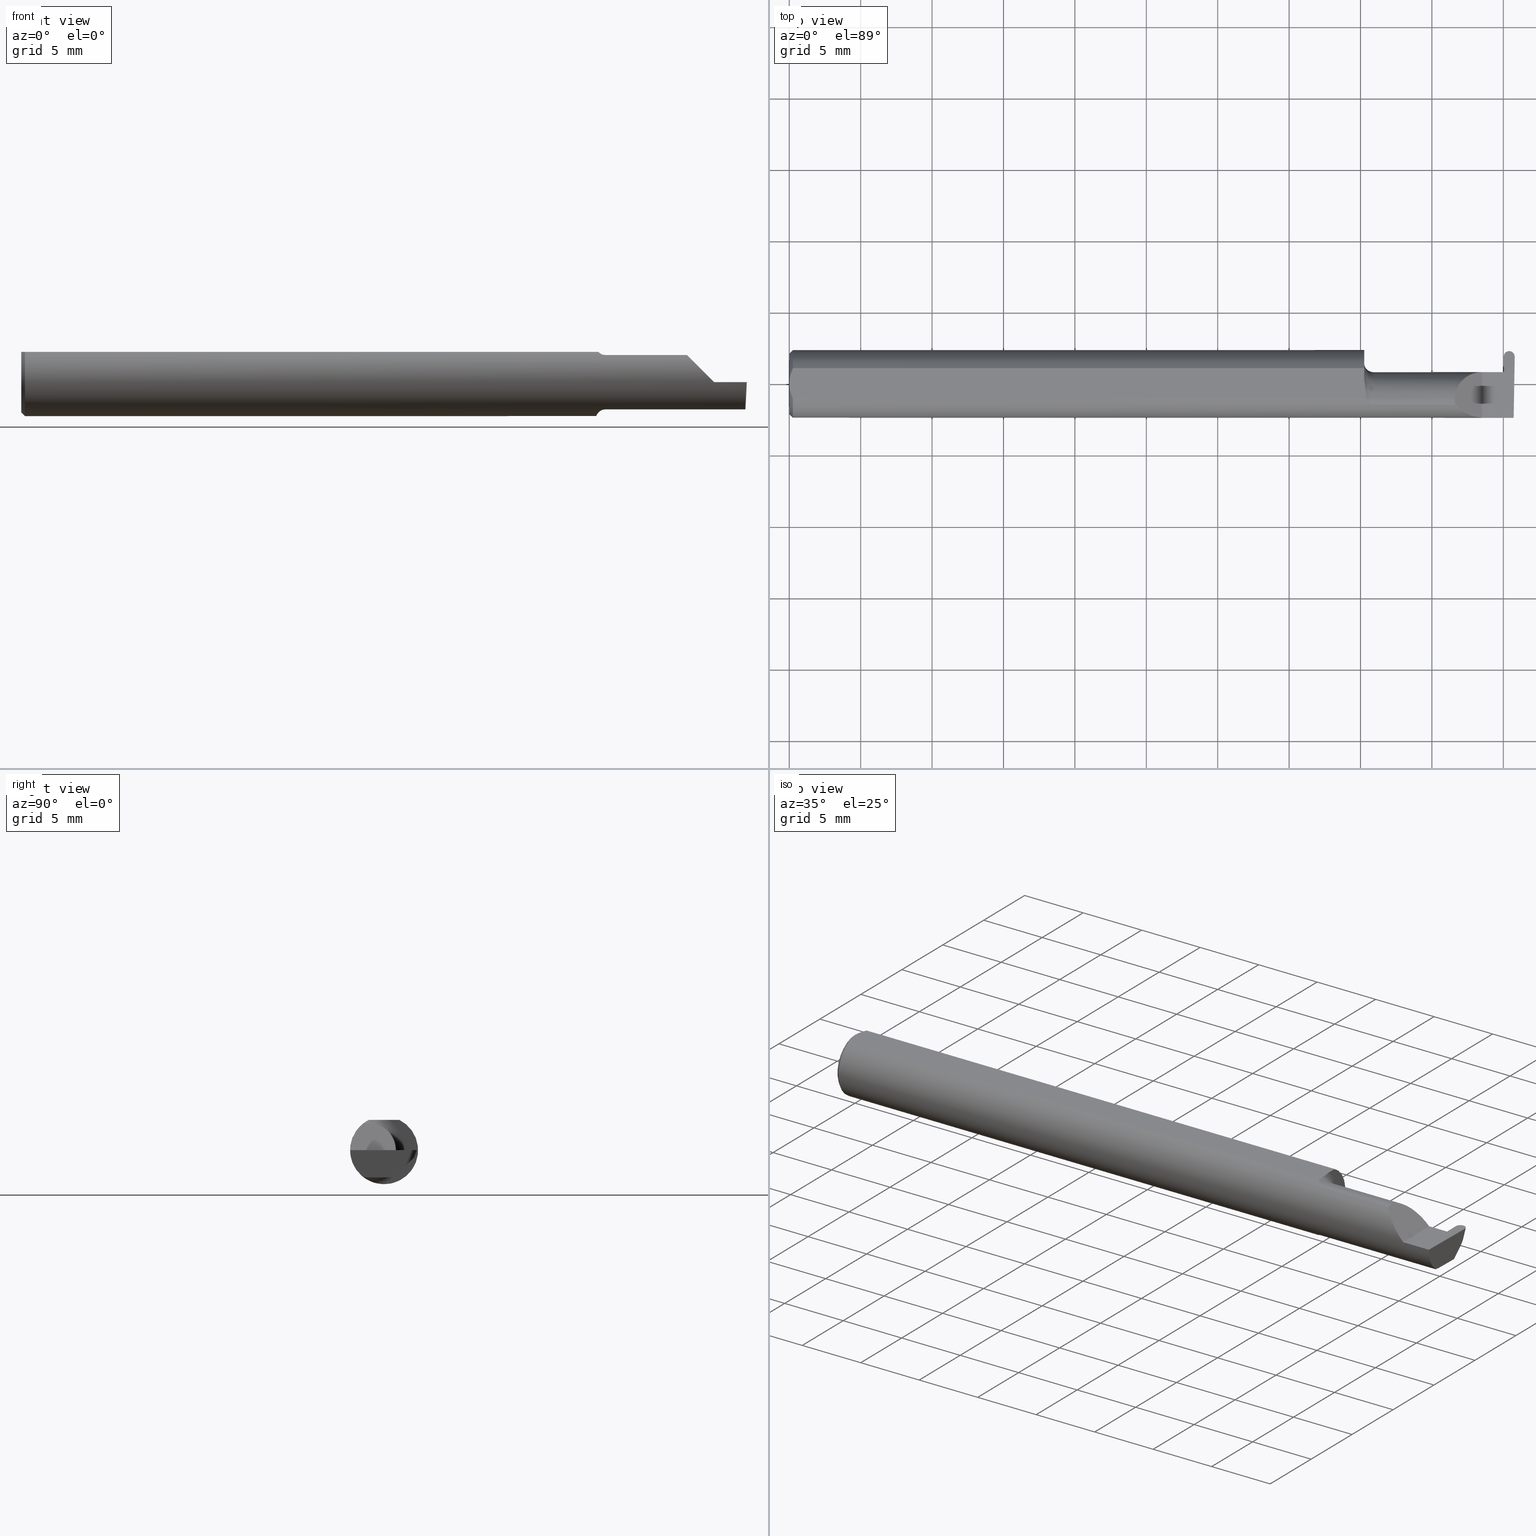
[diagram: canonical four-view strip — front | top / right | iso, engineering-drawing reading convention]
A machine part, canonical four-view strip (front | top / right | iso — engineering-drawing reading convention). The complete STEP part file that produces these views, byte-faithful:
ISO-10303-21;
HEADER;
FILE_DESCRIPTION (( 'STEP AP203' ),
    '1' );
FILE_NAME ('221831-GFR030K-6.STEP',
    '2024-06-17T19:38:11',
    ( '' ),
    ( '' ),
    'SwSTEP 2.0',
    'SolidWorks 2022',
    '' );
FILE_SCHEMA (( 'CONFIG_CONTROL_DESIGN' ));
ENDSEC;

DATA;
#1 = EDGE_CURVE ( 'NONE', #519, #491, #151, .T. ) ;
#2 = CARTESIAN_POINT ( 'NONE',  ( 1.586463898467976863, -0.005727447913487319735, 0.08359999999999991049 ) ) ;
#3 = EDGE_LOOP ( 'NONE', ( #702, #766, #31, #355 ) ) ;
#4 = VERTEX_POINT ( 'NONE', #533 ) ;
#5 = ADVANCED_FACE ( 'NONE', ( #743 ), #181, .F. ) ;
#6 = LINE ( 'NONE', #264, #219 ) ;
#7 = ORIENTED_EDGE ( 'NONE', *, *, #71, .T. ) ;
#8 = VECTOR ( 'NONE', #345, 39.37007874015748854 ) ;
#9 = DIRECTION ( 'NONE',  ( 0.000000000000000000, 0.000000000000000000, 1.000000000000000000 ) ) ;
#10 = CARTESIAN_POINT ( 'NONE',  ( 1.591204482410374377, -0.04226411763296350488, 0.08351490979309540708 ) ) ;
#11 = ORIENTED_EDGE ( 'NONE', *, *, #805, .F. ) ;
#12 = EDGE_CURVE ( 'NONE', #586, #114, #112, .T. ) ;
#13 = CARTESIAN_POINT ( 'NONE',  ( 1.997057062866469668, -0.09360000000000001652, 0.000000000000000000 ) ) ;
#14 = PLANE ( 'NONE',  #368 ) ;
#15 = ORIENTED_EDGE ( 'NONE', *, *, #313, .T. ) ;
#16 = ADVANCED_FACE ( 'NONE', ( #430 ), #670, .T. ) ;
#17 = LINE ( 'NONE', #523, #82 ) ;
#18 = DIRECTION ( 'NONE',  ( 0.000000000000000000, 0.000000000000000000, -1.000000000000000000 ) ) ;
#19 = ORIENTED_EDGE ( 'NONE', *, *, #538, .T. ) ;
#20 =( BOUNDED_CURVE ( )  B_SPLINE_CURVE ( 3, ( #377, #635, #230, #67 ),
 .UNSPECIFIED., .F., .F. ) 
 B_SPLINE_CURVE_WITH_KNOTS ( ( 4, 4 ),
 ( 6.177091236414002928, 7.752341154236729537 ),
 .UNSPECIFIED. ) 
 CURVE ( )  GEOMETRIC_REPRESENTATION_ITEM ( )  RATIONAL_B_SPLINE_CURVE ( ( 1.000000000000000000, 0.8036869647627065127, 0.8036869647627065127, 1.000000000000000000 ) ) 
 REPRESENTATION_ITEM ( '' )  );
#21 = AXIS2_PLACEMENT_3D ( 'NONE', #626, #54, #244 ) ;
#22 = CARTESIAN_POINT ( 'NONE',  ( 0.01000000000000016674, -0.04209513035969864037, 0.08359999999999988274 ) ) ;
#23 = ORIENTED_EDGE ( 'NONE', *, *, #301, .F. ) ;
#24 = CARTESIAN_POINT ( 'NONE',  ( 1.854690286057536941, -0.08092595952420821026, 0.05530971394246249340 ) ) ;
#25 = DIRECTION ( 'NONE',  ( -0.03876062227022336604, -0.3417631236437465025, -0.9389864650134710500 ) ) ;
#26 = APPROVAL_STATUS ( 'not_yet_approved' ) ;
#27 = VERTEX_POINT ( 'NONE', #674 ) ;
#28 = ADVANCED_FACE ( 'NONE', ( #490 ), #250, .F. ) ;
#29 = DIRECTION ( 'NONE',  ( 0.000000000000000000, 0.000000000000000000, 1.000000000000000000 ) ) ;
#30 = PERSON_AND_ORGANIZATION ( #210, #809 ) ;
#31 = ORIENTED_EDGE ( 'NONE', *, *, #447, .F. ) ;
#32 = FACE_OUTER_BOUND ( 'NONE', #661, .T. ) ;
#33 = CARTESIAN_POINT ( 'NONE',  ( 1.880893035518782730, -0.09359999999999997489, 0.02910696448121682239 ) ) ;
#34 = VERTEX_POINT ( 'NONE', #683 ) ;
#35 = AXIS2_PLACEMENT_3D ( 'NONE', #342, #410, #287 ) ;
#36 = LOCAL_TIME ( 12, 38, 11.00000000000000000, #99 ) ;
#37 = CARTESIAN_POINT ( 'NONE',  ( 1.834999999999999520, -0.04260000000000003367, 0.07500000000000003886 ) ) ;
#38 = CARTESIAN_POINT ( 'NONE',  ( 1.967284513080595598, 0.1350099130299694805, 0.03252534748102790807 ) ) ;
#39 = APPLICATION_PROTOCOL_DEFINITION ( 'international standard', 'config_control_design', 1994, #441 ) ;
#40 = ORIENTED_EDGE ( 'NONE', *, *, #489, .F. ) ;
#41 = CARTESIAN_POINT ( 'NONE',  ( 1.591129652885479473, -0.04209513035970116612, 0.08359999999999991049 ) ) ;
#42 = CARTESIAN_POINT ( 'NONE',  ( 1.584999999999999964, 0.09359999999999996101, 0.000000000000000000 ) ) ;
#43 = DESIGN_CONTEXT ( 'detailed design', #441, 'design' ) ;
#44 = EDGE_CURVE ( 'NONE', #34, #653, #48, .T. ) ;
#45 = APPROVAL_ROLE ( '' ) ;
#46 = CARTESIAN_POINT ( 'NONE',  ( 0.01000000000000016674, 0.000000000000000000, 0.000000000000000000 ) ) ;
#47 = CARTESIAN_POINT ( 'NONE',  ( 1.595264545693808822, -0.04993027844100252771, -0.07924826417278524326 ) ) ;
#48 = LINE ( 'NONE', #117, #552 ) ;
#49 = VECTOR ( 'NONE', #484, 39.37007874015748143 ) ;
#50 = DIRECTION ( 'NONE',  ( -1.000000000000000000, -0.000000000000000000, -0.000000000000000000 ) ) ;
#51 = VERTEX_POINT ( 'NONE', #105 ) ;
#52 = CARTESIAN_POINT ( 'NONE',  ( 1.984733980000000342, 0.08346613280634004872, -0.01901843274260211006 ) ) ;
#53 =( BOUNDED_CURVE ( )  B_SPLINE_CURVE ( 3, ( #253, #695, #561, #318 ),
 .UNSPECIFIED., .F., .F. ) 
 B_SPLINE_CURVE_WITH_KNOTS ( ( 4, 4 ),
 ( 6.074922494366330916, 6.283185307179586232 ),
 .UNSPECIFIED. ) 
 CURVE ( )  GEOMETRIC_REPRESENTATION_ITEM ( )  RATIONAL_B_SPLINE_CURVE ( ( 1.000000000000000000, 0.9963888149483995926, 0.9963888149483995926, 1.000000000000000000 ) ) 
 REPRESENTATION_ITEM ( '' )  );
#54 = DIRECTION ( 'NONE',  ( 0.000000000000000000, -0.7071067811865513475, 0.7071067811865436870 ) ) ;
#55 = ORIENTED_EDGE ( 'NONE', *, *, #95, .F. ) ;
#56 = EDGE_CURVE ( 'NONE', #586, #770, #358, .T. ) ;
#57 = CARTESIAN_POINT ( 'NONE',  ( 1.984939206054983751, 0.09039999999999999425, 0.000000000000000000 ) ) ;
#58 = DIRECTION ( 'NONE',  ( 1.000000000000000000, 0.000000000000000000, 0.000000000000000000 ) ) ;
#59 = EDGE_LOOP ( 'NONE', ( #726, #509, #444 ) ) ;
#60 = CARTESIAN_POINT ( 'NONE',  ( 1.609999999999999654, -0.05810704225352104207, -0.07337936794867834511 ) ) ;
#61 = VECTOR ( 'NONE', #275, 39.37007874015748143 ) ;
#62 = AXIS2_PLACEMENT_3D ( 'NONE', #186, #689, #128 ) ;
#63 = EDGE_CURVE ( 'NONE', #770, #265, #401, .T. ) ;
#64 = ORIENTED_EDGE ( 'NONE', *, *, #63, .T. ) ;
#65 = DIRECTION ( 'NONE',  ( 1.000000000000000000, 0.000000000000000000, 0.000000000000000000 ) ) ;
#66 = EDGE_LOOP ( 'NONE', ( #640, #319, #396, #281, #209 ) ) ;
#67 = CARTESIAN_POINT ( 'NONE',  ( 1.969483699970306922, 0.07409901316683066563, 0.000000000000000000 ) ) ;
#68 =( BOUNDED_CURVE ( )  B_SPLINE_CURVE ( 3, ( #88, #765, #591, #327 ),
 .UNSPECIFIED., .F., .F. ) 
 B_SPLINE_CURVE_WITH_KNOTS ( ( 4, 4 ),
 ( 4.726007796544804407, 6.263244654271833411 ),
 .UNSPECIFIED. ) 
 CURVE ( )  GEOMETRIC_REPRESENTATION_ITEM ( )  RATIONAL_B_SPLINE_CURVE ( ( 1.000000000000000000, 0.8125811630039301292, 0.8125811630039301292, 1.000000000000000000 ) ) 
 REPRESENTATION_ITEM ( '' )  );
#69 = CARTESIAN_POINT ( 'NONE',  ( 1.984733980000000564, 0.08859046512939580675, -0.004971656196700772502 ) ) ;
#70 = EDGE_LOOP ( 'NONE', ( #131, #86, #268, #140 ) ) ;
#71 = EDGE_CURVE ( 'NONE', #574, #285, #434, .T. ) ;
#72 = CIRCLE ( 'NONE', #567, 0.09360000000000001652 ) ;
#73 = MECHANICAL_CONTEXT ( 'NONE', #359, 'mechanical' ) ;
#74 = ORIENTED_EDGE ( 'NONE', *, *, #322, .T. ) ;
#75 = CARTESIAN_POINT ( 'NONE',  ( 1.969493928509964853, 0.1196567895122383207, 0.01717222396329657827 ) ) ;
#76 = LENGTH_MEASURE_WITH_UNIT ( LENGTH_MEASURE( 0.02539999999999999897 ), #320 );
#77 = ORIENTED_EDGE ( 'NONE', *, *, #582, .F. ) ;
#78 = EDGE_CURVE ( 'NONE', #388, #439, #310, .T. ) ;
#79 = CARTESIAN_POINT ( 'NONE',  ( 1.996040470437265402, -0.09360000000000003040, -0.02910696448121680505 ) ) ;
#80 =( NAMED_UNIT ( * ) SI_UNIT ( $, .STERADIAN. ) SOLID_ANGLE_UNIT ( ) );
#81 = ORIENTED_EDGE ( 'NONE', *, *, #229, .T. ) ;
#82 = VECTOR ( 'NONE', #200, 39.37007874015748143 ) ;
#83 = LOCAL_TIME ( 12, 38, 11.00000000000000000, #722 ) ;
#84 = EDGE_CURVE ( 'NONE', #143, #388, #307, .T. ) ;
#85 = CARTESIAN_POINT ( 'NONE',  ( 1.995346537079453419, -0.08092595952420826577, -0.05530971394246249340 ) ) ;
#86 = ORIENTED_EDGE ( 'NONE', *, *, #707, .T. ) ;
#87 = PLANE ( 'NONE',  #579 ) ;
#88 = CARTESIAN_POINT ( 'NONE',  ( 1.971325961646301028, 0.05785528259492387498, -0.04462928295401853707 ) ) ;
#89 = DATE_AND_TIME ( #233, #667 ) ;
#90 = CARTESIAN_POINT ( 'NONE',  ( 1.999994460970140109, 0.07418895767924950368, 0.0002471205168746652800 ) ) ;
#91 = CARTESIAN_POINT ( 'NONE',  ( 1.970211558952576159, 0.03239999999999999825, 0.000000000000000000 ) ) ;
#92 = FACE_OUTER_BOUND ( 'NONE', #799, .T. ) ;
#93 = ORIENTED_EDGE ( 'NONE', *, *, #329, .F. ) ;
#94 = CARTESIAN_POINT ( 'NONE',  ( 0.000000000000000000, 0.000000000000000000, -0.08359999999999989662 ) ) ;
#95 = EDGE_CURVE ( 'NONE', #491, #373, #624, .T. ) ;
#96 = DIRECTION ( 'NONE',  ( -1.000000000000000000, -0.000000000000000000, -0.000000000000000000 ) ) ;
#97 = PLANE ( 'NONE',  #165 ) ;
#98 = CIRCLE ( 'NONE', #764, 0.09360000000000001652 ) ;
#99 = COORDINATED_UNIVERSAL_TIME_OFFSET ( 8, 0, .BEHIND. ) ;
#100 = ORIENTED_EDGE ( 'NONE', *, *, #381, .T. ) ;
#101 = AXIS2_PLACEMENT_3D ( 'NONE', #727, #545, #413 ) ;
#102 = DIRECTION ( 'NONE',  ( -1.224646799147358877E-16, 0.000000000000000000, -1.000000000000000000 ) ) ;
#103 = LINE ( 'NONE', #601, #498 ) ;
#104 = SECURITY_CLASSIFICATION_LEVEL ( 'unclassified' ) ;
#105 = CARTESIAN_POINT ( 'NONE',  ( 1.996551145152111628, 0.02748456554894272708, -0.07500000000000002498 ) ) ;
#106 = CARTESIAN_POINT ( 'NONE',  ( 1.601469028275930739, -0.05559939362423882425, 0.07530665289274077190 ) ) ;
#107 = DIRECTION ( 'NONE',  ( -1.000000000000000000, -0.000000000000000000, -0.000000000000000000 ) ) ;
#108 = CARTESIAN_POINT ( 'NONE',  ( 1.589570820222980352, -0.02392027542784321698, 0.08359999999999992437 ) ) ;
#109 = CARTESIAN_POINT ( 'NONE',  ( 1.984733980000000342, 0.08346613280634004872, -0.01901843274260211006 ) ) ;
#110 = CARTESIAN_POINT ( 'NONE',  ( 1.584999999999999964, 0.03239999999999999131, 5.082284216461538453E-17 ) ) ;
#111 = EDGE_CURVE ( 'NONE', #650, #207, #806, .T. ) ;
#112 = CIRCLE ( 'NONE', #758, 0.08359999999999989662 ) ;
#113 = CARTESIAN_POINT ( 'NONE',  ( 1.585000000000000187, 0.003280657920457245337, 0.08359999999999991049 ) ) ;
#114 = VERTEX_POINT ( 'NONE', #750 ) ;
#115 = APPROVAL_PERSON_ORGANIZATION ( #403, #700, #45 ) ;
#116 = FACE_OUTER_BOUND ( 'NONE', #685, .T. ) ;
#117 = CARTESIAN_POINT ( 'NONE',  ( 1.584999999999999964, -0.04260000000000003367, 0.07500000000000003886 ) ) ;
#118 = CARTESIAN_POINT ( 'NONE',  ( 1.584999999999999964, -0.04260000000000003367, 0.000000000000000000 ) ) ;
#119 = B_SPLINE_CURVE_WITH_KNOTS ( 'NONE', 3,
 ( #168, #184, #797, #360, #106, #671, #302, #565 ),
 .UNSPECIFIED., .F., .F.,
 ( 4, 2, 2, 4 ),
 ( 1.584523690453282392E-05, 0.0003656721978374717652, 0.0005405856783039410121, 0.0007154991587704103134 ),
 .UNSPECIFIED. ) ;
#120 = ORIENTED_EDGE ( 'NONE', *, *, #431, .F. ) ;
#121 = CARTESIAN_POINT ( 'NONE',  ( 1.998141998353699433, 0.05785528259492388886, -0.04462928295401852319 ) ) ;
#122 = ORIENTED_EDGE ( 'NONE', *, *, #510, .T. ) ;
#123 = CARTESIAN_POINT ( 'NONE',  ( 1.997057062866469668, -0.09360000000000001652, 0.000000000000000000 ) ) ;
#124 = CARTESIAN_POINT ( 'NONE',  ( 1.981957002351929287, 0.06410508538814199686, -0.07224468414256721149 ) ) ;
#125 = VERTEX_POINT ( 'NONE', #486 ) ;
#126 = VECTOR ( 'NONE', #159, 39.37007874015748143 ) ;
#127 = VECTOR ( 'NONE', #50, 39.37007874015748143 ) ;
#128 = DIRECTION ( 'NONE',  ( 0.000000000000000000, 0.000000000000000000, 1.000000000000000000 ) ) ;
#129 = ORIENTED_EDGE ( 'NONE', *, *, #721, .T. ) ;
#130 = ADVANCED_FACE ( 'NONE', ( #736 ), #171, .F. ) ;
#131 = ORIENTED_EDGE ( 'NONE', *, *, #71, .F. ) ;
#132 = CYLINDRICAL_SURFACE ( 'NONE', #794, 0.01524999999999999793 ) ;
#133 = ORIENTED_EDGE ( 'NONE', *, *, #1, .T. ) ;
#134 = ADVANCED_FACE ( 'NONE', ( #92 ), #87, .F. ) ;
#135 = CARTESIAN_POINT ( 'NONE',  ( 1.599728336617688651, -0.05428341532129030145, -0.07627162539867106406 ) ) ;
#136 = VECTOR ( 'NONE', #424, 39.37007874015748143 ) ;
#137 = PRODUCT ( '221831-GFR030K-6', '221831-GFR030K-6', '', ( #73 ) ) ;
#138 = CYLINDRICAL_SURFACE ( 'NONE', #643, 0.01524999999999999793 ) ;
#139 = FACE_OUTER_BOUND ( 'NONE', #706, .T. ) ;
#140 = ORIENTED_EDGE ( 'NONE', *, *, #542, .T. ) ;
#141 = CARTESIAN_POINT ( 'NONE',  ( 1.964138266443235414, 0.03233910125649559764, -0.001743911843603182434 ) ) ;
#142 = DIRECTION ( 'NONE',  ( -1.000000000000000000, -0.000000000000000000, -0.000000000000000000 ) ) ;
#143 = VERTEX_POINT ( 'NONE', #720 ) ;
#144 = ADVANCED_FACE ( 'NONE', ( #348 ), #669, .F. ) ;
#145 = CARTESIAN_POINT ( 'NONE',  ( 1.970397471987413995, 0.03221730376948542252, -0.005231735530809524318 ) ) ;
#146 = ORIENTED_EDGE ( 'NONE', *, *, #78, .T. ) ;
#147 = CARTESIAN_POINT ( 'NONE',  ( 1.910000000000000142, -0.09360000000000005815, 1.102182119232621301E-17 ) ) ;
#148 = AXIS2_PLACEMENT_3D ( 'NONE', #370, #438, #323 ) ;
#149 = CC_DESIGN_PERSON_AND_ORGANIZATION_ASSIGNMENT ( #295, #734, ( #435 ) ) ;
#150 = CALENDAR_DATE ( 2024, 17, 6 ) ;
#151 = LINE ( 'NONE', #90, #8 ) ;
#152 = FACE_OUTER_BOUND ( 'NONE', #648, .T. ) ;
#153 = FACE_OUTER_BOUND ( 'NONE', #710, .T. ) ;
#154 = SHAPE_DEFINITION_REPRESENTATION ( #678, #649 ) ;
#155 = ORIENTED_EDGE ( 'NONE', *, *, #477, .T. ) ;
#156 = EDGE_CURVE ( 'NONE', #51, #340, #103, .T. ) ;
#157 = CARTESIAN_POINT ( 'NONE',  ( 0.000000000000000000, 0.000000000000000000, 0.000000000000000000 ) ) ;
#158 = CARTESIAN_POINT ( 'NONE',  ( 1.609999999999999654, -0.04260000000000003367, 0.000000000000000000 ) ) ;
#159 = DIRECTION ( 'NONE',  ( -0.03701368837992446981, 0.7066222423871552083, 0.7066222423871628688 ) ) ;
#160 = APPROVAL_STATUS ( 'not_yet_approved' ) ;
#161 = ORIENTED_EDGE ( 'NONE', *, *, #425, .F. ) ;
#162 = ADVANCED_FACE ( 'NONE', ( #153 ), #97, .F. ) ;
#163 = LINE ( 'NONE', #791, #625 ) ;
#164 = DIRECTION ( 'NONE',  ( 1.000000000000000000, 0.000000000000000000, 0.000000000000000000 ) ) ;
#165 = AXIS2_PLACEMENT_3D ( 'NONE', #531, #663, #357 ) ;
#166 = EDGE_LOOP ( 'NONE', ( #600, #807, #544 ) ) ;
#167 = DIRECTION ( 'NONE',  ( -1.000000000000000000, 0.000000000000000000, 1.224646799147358877E-16 ) ) ;
#168 = CARTESIAN_POINT ( 'NONE',  ( 1.591356684838558744, -0.04260000000000006143, 0.08334386600104411180 ) ) ;
#169 = ADVANCED_FACE ( 'NONE', ( #405 ), #211, .T. ) ;
#170 = FACE_OUTER_BOUND ( 'NONE', #59, .T. ) ;
#171 = PLANE ( 'NONE',  #535 ) ;
#172 = CARTESIAN_POINT ( 'NONE',  ( 1.995165152206654691, -0.05300374992736048979, -0.07445783144524575903 ) ) ;
#173 = ORIENTED_EDGE ( 'NONE', *, *, #223, .F. ) ;
#174 = CARTESIAN_POINT ( 'NONE',  ( 1.969470285088788852, 0.07486755121428030624, 0.000000000000000000 ) ) ;
#175 = EDGE_CURVE ( 'NONE', #4, #195, #517, .T. ) ;
#176 = B_SPLINE_CURVE_WITH_KNOTS ( 'NONE', 3,
 ( #41, #675, #108, #2, #113, #555 ),
 .UNSPECIFIED., .F., .F.,
 ( 4, 2, 4 ),
 ( 0.009672910729349542408, 0.01035804079918431486, 0.01104317086901908732 ),
 .UNSPECIFIED. ) ;
#177 = DIRECTION ( 'NONE',  ( 0.03876062227022340767, -0.3417631236437464470, -0.9389864650134710500 ) ) ;
#178 = ORIENTED_EDGE ( 'NONE', *, *, #313, .F. ) ;
#179 = DIRECTION ( 'NONE',  ( 1.000000000000000000, 0.000000000000000000, 0.000000000000000000 ) ) ;
#180 = CC_DESIGN_PERSON_AND_ORGANIZATION_ASSIGNMENT ( #471, #612, ( #137 ) ) ;
#181 = PLANE ( 'NONE',  #731 ) ;
#182 = ORIENTED_EDGE ( 'NONE', *, *, #691, .T. ) ;
#183 = AXIS2_PLACEMENT_3D ( 'NONE', #769, #639, #65 ) ;
#184 = CARTESIAN_POINT ( 'NONE',  ( 1.593098441794898346, -0.04641417426599075274, 0.08139430652501543351 ) ) ;
#185 = DIRECTION ( 'NONE',  ( 0.9992386149554827179, 0.01744177490282312198, 0.03489949670250104552 ) ) ;
#186 = CARTESIAN_POINT ( 'NONE',  ( 1.609999999999999654, -0.04260000000000003367, 0.000000000000000000 ) ) ;
#187 = ORIENTED_EDGE ( 'NONE', *, *, #229, .F. ) ;
#188 = VERTEX_POINT ( 'NONE', #541 ) ;
#189 = DIRECTION ( 'NONE',  ( 0.03547001781079536092, 0.000000000000000000, -0.9993707409347653003 ) ) ;
#190 = ORIENTED_EDGE ( 'NONE', *, *, #111, .T. ) ;
#191 = AXIS2_PLACEMENT_3D ( 'NONE', #46, #554, #500 ) ;
#192 = AXIS2_PLACEMENT_3D ( 'NONE', #459, #384, #18 ) ;
#193 = EDGE_CURVE ( 'NONE', #404, #770, #98, .T. ) ;
#194 = CARTESIAN_POINT ( 'NONE',  ( 1.591129652885479473, -0.04209513035970116612, 0.08359999999999991049 ) ) ;
#195 = VERTEX_POINT ( 'NONE', #337 ) ;
#196 = EDGE_CURVE ( 'NONE', #188, #373, #611, .T. ) ;
#197 = CARTESIAN_POINT ( 'NONE',  ( 1.995113740419715231, -0.05810704225352107677, -0.07337936794867833123 ) ) ;
#198 = DIRECTION ( 'NONE',  ( 1.000000000000000000, 0.000000000000000000, -0.000000000000000000 ) ) ;
#199 = ORIENTED_EDGE ( 'NONE', *, *, #461, .F. ) ;
#200 = DIRECTION ( 'NONE',  ( -1.000000000000000000, -0.000000000000000000, -0.000000000000000000 ) ) ;
#201 = CARTESIAN_POINT ( 'NONE',  ( 1.584999999999999964, 0.03221730376948627600, -0.005231735530817208275 ) ) ;
#202 = ORIENTED_EDGE ( 'NONE', *, *, #757, .F. ) ;
#203 = TOROIDAL_SURFACE ( 'NONE', #414, 0.09999999999999999167, 0.02499999999999993894 ) ;
#204 = CC_DESIGN_APPROVAL ( #700, ( #655 ) ) ;
#205 = DIRECTION ( 'NONE',  ( -0.03876062227022340767, 0.3417631236437465025, 0.9389864650134710500 ) ) ;
#206 = DIRECTION ( 'NONE',  ( -1.000000000000000000, -0.000000000000000000, -0.000000000000000000 ) ) ;
#207 = VERTEX_POINT ( 'NONE', #771 ) ;
#208 = CARTESIAN_POINT ( 'NONE',  ( 1.981547166899399359, 0.1023591649057441905, 0.07744555263655338029 ) ) ;
#209 = ORIENTED_EDGE ( 'NONE', *, *, #805, .T. ) ;
#210 = PERSON ( 'UNSPECIFIED', 'UNSPECIFIED', 'UNSPECIFIED', ('UNSPECIFIED'), ('UNSPECIFIED'), ('UNSPECIFIED') ) ;
#211 = PLANE ( 'NONE',  #780 ) ;
#212 = CARTESIAN_POINT ( 'NONE',  ( 1.981957002351928621, 0.04977477292115689567, -0.06702887695685075253 ) ) ;
#213 = VERTEX_POINT ( 'NONE', #792 ) ;
#214 = CARTESIAN_POINT ( 'NONE',  ( 2.000000000000000000, -0.2500000000000000555, 0.000000000000000000 ) ) ;
#215 = LINE ( 'NONE', #38, #126 ) ;
#216 =( BOUNDED_CURVE ( )  B_SPLINE_CURVE ( 3, ( #592, #387, #712, #276 ),
 .UNSPECIFIED., .F., .F. ) 
 B_SPLINE_CURVE_WITH_KNOTS ( ( 4, 4 ),
 ( 1.570796326794928977, 1.608809386890629023 ),
 .UNSPECIFIED. ) 
 CURVE ( )  GEOMETRIC_REPRESENTATION_ITEM ( )  RATIONAL_B_SPLINE_CURVE ( ( 1.000000000000000000, 0.9998795875634766128, 0.9998795875634766128, 1.000000000000000000 ) ) 
 REPRESENTATION_ITEM ( '' )  );
#217 = VECTOR ( 'NONE', #560, 39.37007874015748143 ) ;
#218 = EDGE_CURVE ( 'NONE', #593, #207, #215, .T. ) ;
#219 = VECTOR ( 'NONE', #576, 39.37007874015748854 ) ;
#220 = ORIENTED_EDGE ( 'NONE', *, *, #341, .T. ) ;
#221 = CARTESIAN_POINT ( 'NONE',  ( 1.995327814509989528, -0.04259999999999980469, -0.07500000000000002498 ) ) ;
#222 = CARTESIAN_POINT ( 'NONE',  ( 1.584999999999999964, 0.09360000000000005815, 0.08359999999999991049 ) ) ;
#223 = EDGE_CURVE ( 'NONE', #143, #589, #698, .T. ) ;
#224 = VERTEX_POINT ( 'NONE', #479 ) ;
#225 = CARTESIAN_POINT ( 'NONE',  ( 1.995113740419715231, -0.05810704225352107677, -0.07337936794867833123 ) ) ;
#226 = CARTESIAN_POINT ( 'NONE',  ( 1.587415450430338160, -0.03151229630690477457, -0.08835846806355295013 ) ) ;
#227 = PERSON_AND_ORGANIZATION_ROLE ( 'classification_officer' ) ;
#228 = ORIENTED_EDGE ( 'NONE', *, *, #223, .T. ) ;
#229 = EDGE_CURVE ( 'NONE', #696, #224, #606, .T. ) ;
#230 = CARTESIAN_POINT ( 'NONE',  ( 1.969317177462681423, 0.08363908123938847139, 1.889248031255481417E-18 ) ) ;
#231 = LINE ( 'NONE', #724, #335 ) ;
#232 = AXIS2_PLACEMENT_3D ( 'NONE', #503, #580, #628 ) ;
#233 = CALENDAR_DATE ( 2024, 17, 6 ) ;
#234 = CARTESIAN_POINT ( 'NONE',  ( 0.000000000000000000, 0.000000000000000000, -0.08359999999999989662 ) ) ;
#235 = AXIS2_PLACEMENT_3D ( 'NONE', #118, #630, #372 ) ;
#236 = CARTESIAN_POINT ( 'NONE',  ( 1.584999999999999964, -0.04260000000000002673, -0.07500000000000003886 ) ) ;
#237 = EDGE_LOOP ( 'NONE', ( #77, #525, #446, #242, #316 ) ) ;
#238 = ADVANCED_FACE ( 'NONE', ( #293 ), #615, .T. ) ;
#239 = CARTESIAN_POINT ( 'NONE',  ( 0.01000000000000016674, 0.04209513035969864037, 0.08359999999999988274 ) ) ;
#240 = CARTESIAN_POINT ( 'NONE',  ( 1.969473499029860131, 0.07418895767924951756, 0.0002471205168746623527 ) ) ;
#241 = FACE_OUTER_BOUND ( 'NONE', #237, .T. ) ;
#242 = ORIENTED_EDGE ( 'NONE', *, *, #397, .T. ) ;
#243 = CARTESIAN_POINT ( 'NONE',  ( 1.609999999999999654, -0.04260000000000003367, 0.09999999999999999167 ) ) ;
#244 = DIRECTION ( 'NONE',  ( 0.000000000000000000, -0.7071067811865436870, -0.7071067811865513475 ) ) ;
#245 =( BOUNDED_CURVE ( )  B_SPLINE_CURVE ( 3, ( #704, #711, #267, #145 ),
 .UNSPECIFIED., .F., .F. ) 
 B_SPLINE_CURVE_WITH_KNOTS ( ( 4, 4 ),
 ( 3.176499238629679756, 4.677482395344799926 ),
 .UNSPECIFIED. ) 
 CURVE ( )  GEOMETRIC_REPRESENTATION_ITEM ( )  RATIONAL_B_SPLINE_CURVE ( ( 1.000000000000000000, 0.8209024677461143060, 0.8209024677461143060, 1.000000000000000000 ) ) 
 REPRESENTATION_ITEM ( '' )  );
#246 = DIRECTION ( 'NONE',  ( 0.000000000000000000, 0.000000000000000000, 1.000000000000000000 ) ) ;
#247 = ORIENTED_EDGE ( 'NONE', *, *, #619, .T. ) ;
#248 = CARTESIAN_POINT ( 'NONE',  ( 1.789733979999999836, -0.05810704225352107677, 0.07337936794867833123 ) ) ;
#249 = EDGE_CURVE ( 'NONE', #519, #51, #231, .T. ) ;
#250 = PLANE ( 'NONE',  #21 ) ;
#251 = B_SPLINE_CURVE_WITH_KNOTS ( 'NONE', 3,
 ( #333, #701, #141, #772 ),
 .UNSPECIFIED., .F., .F.,
 ( 4, 4 ),
 ( 0.000000000000000000, 1.000000000000000000 ),
 .UNSPECIFIED. ) ;
#252 = VECTOR ( 'NONE', #263, 39.37007874015748143 ) ;
#253 = CARTESIAN_POINT ( 'NONE',  ( 1.836620632051321200, -0.05810704225352102820, 0.07337936794867834511 ) ) ;
#254 = ORIENTED_EDGE ( 'NONE', *, *, #156, .T. ) ;
#255 = CONICAL_SURFACE ( 'NONE', #289, 0.08359999999999989662, 0.7853981633974458365 ) ;
#256 = CARTESIAN_POINT ( 'NONE',  ( 1.998904241127222647, 0.07240713412461559362, -0.03007743142432668659 ) ) ;
#257 = FACE_OUTER_BOUND ( 'NONE', #166, .T. ) ;
#258 = VERTEX_POINT ( 'NONE', #714 ) ;
#259 = ORIENTED_EDGE ( 'NONE', *, *, #56, .F. ) ;
#260 = ADVANCED_FACE ( 'NONE', ( #170 ), #288, .F. ) ;
#261 = LINE ( 'NONE', #201, #705 ) ;
#262 = ORIENTED_EDGE ( 'NONE', *, *, #322, .F. ) ;
#263 = DIRECTION ( 'NONE',  ( 1.000000000000000000, -0.000000000000000000, -0.000000000000000000 ) ) ;
#264 = CARTESIAN_POINT ( 'NONE',  ( 1.981547166899400025, 0.1166894773727292917, 0.07222974545083693521 ) ) ;
#265 = VERTEX_POINT ( 'NONE', #656 ) ;
#266 = CC_DESIGN_PERSON_AND_ORGANIZATION_ASSIGNMENT ( #543, #788, ( #655 ) ) ;
#267 = CARTESIAN_POINT ( 'NONE',  ( 1.971871808257659398, 0.02931965133412150343, -0.04667009593691547054 ) ) ;
#268 = ORIENTED_EDGE ( 'NONE', *, *, #431, .T. ) ;
#269 = EDGE_CURVE ( 'NONE', #27, #589, #596, .T. ) ;
#270 = CARTESIAN_POINT ( 'NONE',  ( 1.607653034764491506, -0.05810704225352103514, -0.07337936794867835899 ) ) ;
#271 = CARTESIAN_POINT ( 'NONE',  ( 1.609999999999999654, -0.04260000000000003367, 0.000000000000000000 ) ) ;
#272 = ORIENTED_EDGE ( 'NONE', *, *, #514, .F. ) ;
#273 = VECTOR ( 'NONE', #616, 39.37007874015748143 ) ;
#274 = CC_DESIGN_APPROVAL ( #294, ( #304 ) ) ;
#275 = DIRECTION ( 'NONE',  ( -0.02596452850600439177, 0.7068683906002057871, 0.7068683906002134476 ) ) ;
#276 = CARTESIAN_POINT ( 'NONE',  ( 1.984733980000000342, 0.08346613280634004872, -0.01901843274260211006 ) ) ;
#277 = ORIENTED_EDGE ( 'NONE', *, *, #425, .T. ) ;
#278 = CARTESIAN_POINT ( 'NONE',  ( 1.999997674911211609, 0.07486755121428030624, 0.000000000000000000 ) ) ;
#279 = DIRECTION ( 'NONE',  ( 0.000000000000000000, 0.9396926207859083169, -0.3420201433256689350 ) ) ;
#280 = CALENDAR_DATE ( 2024, 17, 6 ) ;
#281 = ORIENTED_EDGE ( 'NONE', *, *, #721, .F. ) ;
#282 = EDGE_CURVE ( 'NONE', #631, #27, #119, .T. ) ;
#283 = CARTESIAN_POINT ( 'NONE',  ( 1.588953896433695334, -0.03733827064844358334, -0.08603332211978831356 ) ) ;
#284 = CALENDAR_DATE ( 2024, 17, 6 ) ;
#285 = VERTEX_POINT ( 'NONE', #312 ) ;
#286 = DIRECTION ( 'NONE',  ( 0.000000000000000000, 0.000000000000000000, 1.000000000000000000 ) ) ;
#287 = DIRECTION ( 'NONE',  ( -0.7071067811865507924, 0.000000000000000000, 0.7071067811865441310 ) ) ;
#288 = TOROIDAL_SURFACE ( 'NONE', #808, 0.09999999999999999167, 0.02499999999999993894 ) ;
#289 = AXIS2_PLACEMENT_3D ( 'NONE', #157, #795, #478 ) ;
#290 = ORIENTED_EDGE ( 'NONE', *, *, #218, .F. ) ;
#291 = CARTESIAN_POINT ( 'NONE',  ( 1.584999999999999964, 0.000000000000000000, 0.000000000000000000 ) ) ;
#292 = DIRECTION ( 'NONE',  ( 0.000000000000000000, 0.000000000000000000, 1.000000000000000000 ) ) ;
#293 = FACE_OUTER_BOUND ( 'NONE', #730, .T. ) ;
#294 = APPROVAL ( #26, 'UNSPECIFIED' ) ;
#295 = PERSON_AND_ORGANIZATION ( #210, #809 ) ;
#296 = EDGE_LOOP ( 'NONE', ( #15, #247, #81, #789, #23, #754 ) ) ;
#297 = CARTESIAN_POINT ( 'NONE',  ( 1.609999999999999654, -0.04260000000000003367, 0.000000000000000000 ) ) ;
#298 = DIRECTION ( 'NONE',  ( 0.000000000000000000, 0.000000000000000000, -1.000000000000000000 ) ) ;
#299 = DIRECTION ( 'NONE',  ( -0.03549161113179509497, 0.03487750912278161919, 0.9987611851171729338 ) ) ;
#300 = B_SPLINE_CURVE_WITH_KNOTS ( 'NONE', 3,
 ( #677, #746, #617, #433, #551, #239 ),
 .UNSPECIFIED., .F., .F.,
 ( 4, 2, 4 ),
 ( 0.001744210492668864416, 0.002295110172257193264, 0.002846009851845522111 ),
 .UNSPECIFIED. ) ;
#301 = EDGE_CURVE ( 'NONE', #114, #265, #300, .T. ) ;
#302 = CARTESIAN_POINT ( 'NONE',  ( 1.607655343791669855, -0.05810704225352097962, 0.07337936794867835899 ) ) ;
#303 = DIRECTION ( 'NONE',  ( 0.000000000000000000, 0.000000000000000000, 1.000000000000000000 ) ) ;
#304 = SECURITY_CLASSIFICATION ( '', '', #104 ) ;
#305 = VERTEX_POINT ( 'NONE', #687 ) ;
#306 = CARTESIAN_POINT ( 'NONE',  ( 1.993404065077472476, 0.08291310012426146570, -0.01957146542468068962 ) ) ;
#307 = LINE ( 'NONE', #739, #217 ) ;
#308 = CARTESIAN_POINT ( 'NONE',  ( 1.584999999999999964, -0.04260000000000003367, 0.000000000000000000 ) ) ;
#309 = ORIENTED_EDGE ( 'NONE', *, *, #590, .T. ) ;
#310 = LINE ( 'NONE', #110, #694 ) ;
#311 = ORIENTED_EDGE ( 'NONE', *, *, #249, .T. ) ;
#312 = CARTESIAN_POINT ( 'NONE',  ( 1.970211558952576159, 0.03239999999999999825, 0.000000000000000000 ) ) ;
#313 = EDGE_CURVE ( 'NONE', #404, #125, #365, .T. ) ;
#314 = CIRCLE ( 'NONE', #148, 0.08359999999999989662 ) ;
#315 = CARTESIAN_POINT ( 'NONE',  ( 2.999519565323742037E-32, -0.09359999999999998876, 2.449293598294716768E-16 ) ) ;
#316 = ORIENTED_EDGE ( 'NONE', *, *, #317, .F. ) ;
#317 = EDGE_CURVE ( 'NONE', #622, #690, #467, .T. ) ;
#318 = CARTESIAN_POINT ( 'NONE',  ( 1.834999999999999520, -0.04260000000000003367, 0.07500000000000003886 ) ) ;
#319 = ORIENTED_EDGE ( 'NONE', *, *, #111, .F. ) ;
#320 =( LENGTH_UNIT ( ) NAMED_UNIT ( * ) SI_UNIT ( $, .METRE. ) );
#321 = ORIENTED_EDGE ( 'NONE', *, *, #673, .T. ) ;
#322 = EDGE_CURVE ( 'NONE', #285, #650, #692, .T. ) ;
#323 = DIRECTION ( 'NONE',  ( 0.000000000000000000, 0.000000000000000000, -1.000000000000000000 ) ) ;
#324 = LINE ( 'NONE', #392, #391 ) ;
#325 = VERTEX_POINT ( 'NONE', #109 ) ;
#326 = PRODUCT_RELATED_PRODUCT_CATEGORY ( 'detail', '', ( #137 ) ) ;
#327 = CARTESIAN_POINT ( 'NONE',  ( 1.984733980000000342, 0.08346613280634004872, -0.01901843274260211006 ) ) ;
#328 = ORIENTED_EDGE ( 'NONE', *, *, #526, .F. ) ;
#329 = EDGE_CURVE ( 'NONE', #325, #519, #557, .T. ) ;
#330 = DIRECTION ( 'NONE',  ( -0.01745240643727633684, -0.9998476951563912696, 0.000000000000000000 ) ) ;
#331 = CARTESIAN_POINT ( 'NONE',  ( 0.01000000000000016674, 0.000000000000000000, -0.09360000000000001652 ) ) ;
#332 = ORIENTED_EDGE ( 'NONE', *, *, #78, .F. ) ;
#333 = CARTESIAN_POINT ( 'NONE',  ( 1.964016468956226502, 0.03221730376948681029, -0.005231735530809556410 ) ) ;
#334 = ORIENTED_EDGE ( 'NONE', *, *, #642, .T. ) ;
#335 = VECTOR ( 'NONE', #733, 39.37007874015748143 ) ;
#336 = CIRCLE ( 'NONE', #62, 0.07500000000000005274 ) ;
#337 = CARTESIAN_POINT ( 'NONE',  ( 1.584999999999999964, -0.006757276995305234492, -0.09335576686851605743 ) ) ;
#338 = DIRECTION ( 'NONE',  ( 7.095197676277282976E-16, -0.9993908270190957621, 0.03489949670250104552 ) ) ;
#339 = COORDINATED_UNIVERSAL_TIME_OFFSET ( 8, 0, .BEHIND. ) ;
#340 = VERTEX_POINT ( 'NONE', #800 ) ;
#341 = EDGE_CURVE ( 'NONE', #114, #586, #314, .T. ) ;
#342 = CARTESIAN_POINT ( 'NONE',  ( 1.910000000000000142, -0.2500000000000000555, 1.102182119232621301E-17 ) ) ;
#343 = B_SPLINE_CURVE_WITH_KNOTS ( 'NONE', 3,
 ( #194, #10, #585, #518 ),
 .UNSPECIFIED., .F., .F.,
 ( 4, 4 ),
 ( 4.741820243497489152E-07, 1.584523690453282392E-05 ),
 .UNSPECIFIED. ) ;
#344 = PERSON_AND_ORGANIZATION_ROLE ( 'design_supplier' ) ;
#345 = DIRECTION ( 'NONE',  ( 0.03876062227022335910, 0.3417631236437464470, 0.9389864650134710500 ) ) ;
#346 = EDGE_CURVE ( 'NONE', #631, #653, #566, .T. ) ;
#347 = DIRECTION ( 'NONE',  ( 0.000000000000000000, 0.000000000000000000, 1.000000000000000000 ) ) ;
#348 = FACE_OUTER_BOUND ( 'NONE', #581, .T. ) ;
#349 = DATE_AND_TIME ( #658, #36 ) ;
#350 = ORIENTED_EDGE ( 'NONE', *, *, #301, .T. ) ;
#351 = CARTESIAN_POINT ( 'NONE',  ( 1.836620632051321200, -0.05810704225352102820, 0.07337936794867834511 ) ) ;
#352 = CC_DESIGN_DATE_AND_TIME_ASSIGNMENT ( #784, #778, ( #304 ) ) ;
#353 = CARTESIAN_POINT ( 'NONE',  ( 1.584999999999999964, -0.006757276995305234492, -0.09335576686851605743 ) ) ;
#354 = VECTOR ( 'NONE', #777, 39.37007874015748143 ) ;
#355 = ORIENTED_EDGE ( 'NONE', *, *, #568, .F. ) ;
#356 = CARTESIAN_POINT ( 'NONE',  ( 1.910000000000000142, 0.03239999999999999131, 5.082284216461538453E-17 ) ) ;
#357 = DIRECTION ( 'NONE',  ( 0.000000000000000000, 0.000000000000000000, -1.000000000000000000 ) ) ;
#358 = LINE ( 'NONE', #234, #273 ) ;
#359 = APPLICATION_CONTEXT ( 'configuration controlled 3d designs of mechanical parts and assemblies' ) ;
#360 = CARTESIAN_POINT ( 'NONE',  ( 1.599746577633803346, -0.05429945193459796010, 0.07626038032150810053 ) ) ;
#361 = EDGE_CURVE ( 'NONE', #593, #574, #428, .T. ) ;
#362 = CARTESIAN_POINT ( 'NONE',  ( 1.993910768437985759, 0.09039999999999996649, -1.125066701917155339E-18 ) ) ;
#363 = DIRECTION ( 'NONE',  ( -1.000000000000000000, -0.000000000000000000, -0.000000000000000000 ) ) ;
#364 = ORIENTED_EDGE ( 'NONE', *, *, #44, .T. ) ;
#365 = LINE ( 'NONE', #488, #508 ) ;
#366 = AXIS2_PLACEMENT_3D ( 'NONE', #547, #107, #303 ) ;
#367 = CARTESIAN_POINT ( 'NONE',  ( 2.000150782537319483, 0.08363908123938845751, -1.889248031255481802E-18 ) ) ;
#368 = AXIS2_PLACEMENT_3D ( 'NONE', #452, #445, #198 ) ;
#369 = ADVANCED_FACE ( 'NONE', ( #116 ), #374, .T. ) ;
#370 = CARTESIAN_POINT ( 'NONE',  ( 0.000000000000000000, 0.000000000000000000, 0.000000000000000000 ) ) ;
#371 = DIRECTION ( 'NONE',  ( -1.000000000000000000, -0.000000000000000000, -0.000000000000000000 ) ) ;
#372 = DIRECTION ( 'NONE',  ( 0.000000000000000000, 0.000000000000000000, 1.000000000000000000 ) ) ;
#373 = VERTEX_POINT ( 'NONE', #57 ) ;
#374 = CYLINDRICAL_SURFACE ( 'NONE', #232, 0.07500000000000003886 ) ;
#375 = CARTESIAN_POINT ( 'NONE',  ( 1.591356684838558744, -0.04260000000000006143, 0.08334386600104411180 ) ) ;
#376 = ORIENTED_EDGE ( 'NONE', *, *, #1, .F. ) ;
#377 = CARTESIAN_POINT ( 'NONE',  ( 1.984528753945016932, 0.09039999999999999425, 0.000000000000000000 ) ) ;
#378 = EDGE_CURVE ( 'NONE', #404, #114, #749, .T. ) ;
#379 = VECTOR ( 'NONE', #299, 39.37007874015748143 ) ;
#380 = CIRCLE ( 'NONE', #101, 0.07500000000000005274 ) ;
#381 = EDGE_CURVE ( 'NONE', #188, #650, #20, .T. ) ;
#382 = VERTEX_POINT ( 'NONE', #123 ) ;
#383 = CC_DESIGN_DATE_AND_TIME_ASSIGNMENT ( #349, #407, ( #435 ) ) ;
#384 = DIRECTION ( 'NONE',  ( 1.000000000000000000, 0.000000000000000000, 0.000000000000000000 ) ) ;
#385 = ORIENTED_EDGE ( 'NONE', *, *, #526, .T. ) ;
#386 = DIRECTION ( 'NONE',  ( -0.000000000000000000, 1.000000000000000000, 1.224646799147353207E-16 ) ) ;
#387 = CARTESIAN_POINT ( 'NONE',  ( 1.984733980000000342, 0.08688529186597530873, -0.009656581234206245562 ) ) ;
#388 = VERTEX_POINT ( 'NONE', #482 ) ;
#389 = VECTOR ( 'NONE', #330, 39.37007874015748143 ) ;
#390 = ADVANCED_FACE ( 'NONE', ( #511 ), #132, .T. ) ;
#391 = VECTOR ( 'NONE', #449, 39.37007874015748143 ) ;
#392 = CARTESIAN_POINT ( 'NONE',  ( 2.115884466375952400, -0.04259999999999980469, -0.07500000000000002498 ) ) ;
#393 = ORIENTED_EDGE ( 'NONE', *, *, #84, .T. ) ;
#394 = LINE ( 'NONE', #75, #61 ) ;
#395 = CARTESIAN_POINT ( 'NONE',  ( 0.000000000000000000, 0.04209513035969864037, 0.08359999999999988274 ) ) ;
#396 = ORIENTED_EDGE ( 'NONE', *, *, #381, .F. ) ;
#397 = EDGE_CURVE ( 'NONE', #487, #690, #17, .T. ) ;
#398 = CARTESIAN_POINT ( 'NONE',  ( 1.609999999999999654, -0.04260000000000002673, -0.09999999999999999167 ) ) ;
#399 = PERSON_AND_ORGANIZATION ( #210, #809 ) ;
#400 = ORIENTED_EDGE ( 'NONE', *, *, #196, .T. ) ;
#401 = CIRCLE ( 'NONE', #191, 0.09360000000000001652 ) ;
#402 = FACE_OUTER_BOUND ( 'NONE', #70, .T. ) ;
#403 = PERSON_AND_ORGANIZATION ( #210, #809 ) ;
#404 = VERTEX_POINT ( 'NONE', #22 ) ;
#405 = FACE_OUTER_BOUND ( 'NONE', #296, .T. ) ;
#406 =( BOUNDED_CURVE ( )  B_SPLINE_CURVE ( 3, ( #225, #172, #604, #221 ),
 .UNSPECIFIED., .F., .F. ) 
 B_SPLINE_CURVE_WITH_KNOTS ( ( 4, 4 ),
 ( 0.2552020043920776859, 0.4634648172053365545 ),
 .UNSPECIFIED. ) 
 CURVE ( )  GEOMETRIC_REPRESENTATION_ITEM ( )  RATIONAL_B_SPLINE_CURVE ( ( 1.000000000000000000, 0.9963888149483994816, 0.9963888149483994816, 1.000000000000000000 ) ) 
 REPRESENTATION_ITEM ( '' )  );
#407 = DATE_TIME_ROLE ( 'creation_date' ) ;
#408 = ORIENTED_EDGE ( 'NONE', *, *, #642, .F. ) ;
#409 = FACE_OUTER_BOUND ( 'NONE', #613, .T. ) ;
#410 = DIRECTION ( 'NONE',  ( -0.7071067811865442421, 0.000000000000000000, -0.7071067811865509034 ) ) ;
#411 = APPROVAL_ROLE ( '' ) ;
#412 = ORIENTED_EDGE ( 'NONE', *, *, #329, .T. ) ;
#413 = DIRECTION ( 'NONE',  ( 0.000000000000000000, 0.000000000000000000, 1.000000000000000000 ) ) ;
#414 = AXIS2_PLACEMENT_3D ( 'NONE', #297, #608, #286 ) ;
#415 = DIRECTION ( 'NONE',  ( 0.03490480639812536257, 0.000000000000000000, 0.9993906415863165194 ) ) ;
#416 = AXIS2_PLACEMENT_3D ( 'NONE', #755, #740, #189 ) ;
#417 = DIRECTION ( 'NONE',  ( -1.000000000000000000, -0.000000000000000000, -0.000000000000000000 ) ) ;
#418 = CARTESIAN_POINT ( 'NONE',  ( 1.593086474849918499, -0.04638796853538170589, -0.08140770120152261702 ) ) ;
#419 = DIRECTION ( 'NONE',  ( 0.000000000000000000, 0.000000000000000000, 1.000000000000000000 ) ) ;
#420 = CARTESIAN_POINT ( 'NONE',  ( 1.836620632051321200, -0.05810704225352102820, 0.07337936794867834511 ) ) ;
#421 = DIRECTION ( 'NONE',  ( 0.000000000000000000, -0.9396926207859083169, 0.3420201433256689905 ) ) ;
#422 = DIRECTION ( 'NONE',  ( -1.000000000000000000, -0.000000000000000000, -0.000000000000000000 ) ) ;
#423 = ORIENTED_EDGE ( 'NONE', *, *, #12, .T. ) ;
#424 = DIRECTION ( 'NONE',  ( -0.01745240643727647215, 0.9998476951563912696, -0.000000000000000000 ) ) ;
#425 = EDGE_CURVE ( 'NONE', #487, #382, #583, .T. ) ;
#426 = CARTESIAN_POINT ( 'NONE',  ( 1.969470285088788852, 0.07486755121428030624, 0.000000000000000000 ) ) ;
#427 = ORIENTED_EDGE ( 'NONE', *, *, #673, .F. ) ;
#428 = LINE ( 'NONE', #563, #747 ) ;
#429 = AXIS2_PLACEMENT_3D ( 'NONE', #243, #492, #741 ) ;
#430 = FACE_OUTER_BOUND ( 'NONE', #745, .T. ) ;
#431 = EDGE_CURVE ( 'NONE', #213, #439, #251, .T. ) ;
#432 = LINE ( 'NONE', #124, #536 ) ;
#433 = CARTESIAN_POINT ( 'NONE',  ( 0.004492168231814808177, 0.02859366993844194779, 0.08359999999999991049 ) ) ;
#434 = LINE ( 'NONE', #629, #379 ) ;
#435 = PRODUCT_DEFINITION ( 'UNKNOWN', '', #655, #43 ) ;
#436 = FACE_OUTER_BOUND ( 'NONE', #3, .T. ) ;
#437 = ORIENTED_EDGE ( 'NONE', *, *, #633, .T. ) ;
#438 = DIRECTION ( 'NONE',  ( -1.000000000000000000, -0.000000000000000000, -0.000000000000000000 ) ) ;
#439 = VERTEX_POINT ( 'NONE', #451 ) ;
#440 = ADVANCED_FACE ( 'NONE', ( #402 ), #448, .F. ) ;
#441 = APPLICATION_CONTEXT ( 'configuration controlled 3d designs of mechanical parts and assemblies' ) ;
#442 = VECTOR ( 'NONE', #623, 39.37007874015748143 ) ;
#443 =( GEOMETRIC_REPRESENTATION_CONTEXT ( 3 ) GLOBAL_UNCERTAINTY_ASSIGNED_CONTEXT ( ( #470 ) ) GLOBAL_UNIT_ASSIGNED_CONTEXT ( ( #457, #588, #80 ) ) REPRESENTATION_CONTEXT ( 'NONE', 'WORKASPACE' ) );
#444 = ORIENTED_EDGE ( 'NONE', *, *, #317, .T. ) ;
#445 = DIRECTION ( 'NONE',  ( 0.000000000000000000, 0.000000000000000000, 1.000000000000000000 ) ) ;
#446 = ORIENTED_EDGE ( 'NONE', *, *, #538, .F. ) ;
#447 = EDGE_CURVE ( 'NONE', #258, #593, #394, .T. ) ;
#448 = PLANE ( 'NONE',  #717 ) ;
#449 = DIRECTION ( 'NONE',  ( -1.000000000000000000, -0.000000000000000000, -0.000000000000000000 ) ) ;
#450 = ORIENTED_EDGE ( 'NONE', *, *, #341, .F. ) ;
#451 = CARTESIAN_POINT ( 'NONE',  ( 1.964199165186739648, 0.03239999999999999825, 0.000000000000000000 ) ) ;
#452 = CARTESIAN_POINT ( 'NONE',  ( 2.115884466375952400, -0.04259999999999980469, -0.07500000000000002498 ) ) ;
#453 = ORIENTED_EDGE ( 'NONE', *, *, #572, .T. ) ;
#454 = VECTOR ( 'NONE', #177, 39.37007874015748854 ) ;
#455 = VECTOR ( 'NONE', #782, 39.37007874015748143 ) ;
#456 = CARTESIAN_POINT ( 'NONE',  ( 1.605389671955115727, -0.05750350940205781886, -0.07386306649500083699 ) ) ;
#457 =( CONVERSION_BASED_UNIT ( 'INCH', #76 ) LENGTH_UNIT ( ) NAMED_UNIT ( #620 ) );
#458 = ORIENTED_EDGE ( 'NONE', *, *, #514, .T. ) ;
#459 = CARTESIAN_POINT ( 'NONE',  ( 0.000000000000000000, 0.000000000000000000, 0.000000000000000000 ) ) ;
#460 = ORIENTED_EDGE ( 'NONE', *, *, #572, .F. ) ;
#461 = EDGE_CURVE ( 'NONE', #4, #622, #609, .T. ) ;
#462 = DIRECTION ( 'NONE',  ( 0.000000000000000000, 0.000000000000000000, -1.000000000000000000 ) ) ;
#463 = CARTESIAN_POINT ( 'NONE',  ( 1.999997674911211609, 0.07486755121428030624, 0.000000000000000000 ) ) ;
#464 = COORDINATED_UNIVERSAL_TIME_OFFSET ( 8, 0, .BEHIND. ) ;
#465 = ORIENTED_EDGE ( 'NONE', *, *, #776, .F. ) ;
#466 = CARTESIAN_POINT ( 'NONE',  ( 1.866066017177981706, 0.03239999999999999131, 0.04393398282201791544 ) ) ;
#467 = CIRCLE ( 'NONE', #483, 0.07500000000000005274 ) ;
#468 = AXIS2_PLACEMENT_3D ( 'NONE', #308, #802, #246 ) ;
#469 = DIRECTION ( 'NONE',  ( 1.000000000000000000, 0.000000000000000000, 0.000000000000000000 ) ) ;
#470 = UNCERTAINTY_MEASURE_WITH_UNIT (LENGTH_MEASURE( 1.000000000000000082E-05 ), #457, 'distance_accuracy_value', 'NONE');
#471 = PERSON_AND_ORGANIZATION ( #210, #809 ) ;
#472 = EDGE_LOOP ( 'NONE', ( #549, #571, #458, #254 ) ) ;
#473 = PLANE ( 'NONE',  #666 ) ;
#474 = DIRECTION ( 'NONE',  ( -0.01745240643727633684, -0.9998476951563912696, 0.000000000000000000 ) ) ;
#475 = APPROVAL_DATE_TIME ( #89, #700 ) ;
#476 = ORIENTED_EDGE ( 'NONE', *, *, #44, .F. ) ;
#477 = EDGE_CURVE ( 'NONE', #207, #325, #68, .T. ) ;
#478 = DIRECTION ( 'NONE',  ( 0.000000000000000000, 0.000000000000000000, -1.000000000000000000 ) ) ;
#479 = CARTESIAN_POINT ( 'NONE',  ( 1.584999999999999964, 0.04209513035969864037, 0.08359999999999988274 ) ) ;
#480 = DATE_AND_TIME ( #280, #637 ) ;
#481 = ORIENTED_EDGE ( 'NONE', *, *, #397, .F. ) ;
#482 = CARTESIAN_POINT ( 'NONE',  ( 1.910000000000000142, 0.03239999999999999131, 5.082284216461538453E-17 ) ) ;
#483 = AXIS2_PLACEMENT_3D ( 'NONE', #559, #738, #419 ) ;
#484 = DIRECTION ( 'NONE',  ( 0.000000000000000000, 1.000000000000000000, 0.000000000000000000 ) ) ;
#485 = APPROVAL_STATUS ( 'not_yet_approved' ) ;
#486 = CARTESIAN_POINT ( 'NONE',  ( 1.591129652885479473, -0.04209513035970116612, 0.08359999999999991049 ) ) ;
#487 = VERTEX_POINT ( 'NONE', #598 ) ;
#488 = CARTESIAN_POINT ( 'NONE',  ( 0.000000000000000000, -0.04209513035969864037, 0.08359999999999988274 ) ) ;
#489 = EDGE_CURVE ( 'NONE', #305, #574, #245, .T. ) ;
#490 = FACE_OUTER_BOUND ( 'NONE', #513, .T. ) ;
#491 = VERTEX_POINT ( 'NONE', #584 ) ;
#492 = DIRECTION ( 'NONE',  ( 0.000000000000000000, -1.000000000000000000, 0.000000000000000000 ) ) ;
#493 = ADVANCED_FACE ( 'NONE', ( #651 ), #138, .T. ) ;
#494 = CARTESIAN_POINT ( 'NONE',  ( 1.984939206054983751, 0.09039999999999999425, 0.000000000000000000 ) ) ;
#495 = FACE_OUTER_BOUND ( 'NONE', #762, .T. ) ;
#496 = ORIENTED_EDGE ( 'NONE', *, *, #218, .T. ) ;
#497 = CARTESIAN_POINT ( 'NONE',  ( 0.004072204388638868758, -0.02891446873729324601, 0.08359999999999991049 ) ) ;
#498 = VECTOR ( 'NONE', #474, 39.37007874015748143 ) ;
#499 = CC_DESIGN_PERSON_AND_ORGANIZATION_ASSIGNMENT ( #30, #227, ( #304 ) ) ;
#500 = DIRECTION ( 'NONE',  ( 0.000000000000000000, 0.000000000000000000, -1.000000000000000000 ) ) ;
#501 = AXIS2_PLACEMENT_3D ( 'NONE', #271, #709, #647 ) ;
#502 = ORIENTED_EDGE ( 'NONE', *, *, #63, .F. ) ;
#503 = CARTESIAN_POINT ( 'NONE',  ( 1.584999999999999964, -0.04260000000000003367, 0.000000000000000000 ) ) ;
#504 = CYLINDRICAL_SURFACE ( 'NONE', #468, 0.07500000000000003886 ) ;
#505 = ORIENTED_EDGE ( 'NONE', *, *, #619, .F. ) ;
#506 = PLANE ( 'NONE',  #416 ) ;
#507 = ORIENTED_EDGE ( 'NONE', *, *, #56, .T. ) ;
#508 = VECTOR ( 'NONE', #179, 39.37007874015748143 ) ;
#509 = ORIENTED_EDGE ( 'NONE', *, *, #461, .T. ) ;
#510 = EDGE_CURVE ( 'NONE', #491, #382, #515, .T. ) ;
#511 = FACE_OUTER_BOUND ( 'NONE', #66, .T. ) ;
#512 = LINE ( 'NONE', #395, #718 ) ;
#513 = EDGE_LOOP ( 'NONE', ( #496, #155, #412, #311, #272, #803 ) ) ;
#514 = EDGE_CURVE ( 'NONE', #258, #51, #528, .T. ) ;
#515 = LINE ( 'NONE', #463, #389 ) ;
#516 = ORIENTED_EDGE ( 'NONE', *, *, #269, .F. ) ;
#517 = B_SPLINE_CURVE_WITH_KNOTS ( 'NONE', 3,
 ( #783, #283, #226, #728, #672, #353 ),
 .UNSPECIFIED., .F., .F.,
 ( 4, 2, 4 ),
 ( 0.0007041963409106256075, 0.001193146413573847875, 0.001682096486237070251 ),
 .UNSPECIFIED. ) ;
#518 = CARTESIAN_POINT ( 'NONE',  ( 1.591356684838558744, -0.04260000000000006143, 0.08334386600104411180 ) ) ;
#519 = VERTEX_POINT ( 'NONE', #657 ) ;
#520 = AXIS2_PLACEMENT_3D ( 'NONE', #732, #363, #347 ) ;
#521 = EDGE_CURVE ( 'NONE', #690, #4, #735, .T. ) ;
#522 = TOROIDAL_SURFACE ( 'NONE', #501, 0.09999999999999999167, 0.02499999999999993894 ) ;
#523 = CARTESIAN_POINT ( 'NONE',  ( 1.789733979999999836, -0.05810704225352107677, -0.07337936794867833123 ) ) ;
#524 = APPLICATION_PROTOCOL_DEFINITION ( 'international standard', 'config_control_design', 1994, #359 ) ;
#525 = ORIENTED_EDGE ( 'NONE', *, *, #767, .F. ) ;
#526 = EDGE_CURVE ( 'NONE', #696, #195, #703, .T. ) ;
#527 = DIRECTION ( 'NONE',  ( -0.9992386149554827179, 0.01744177490282298668, 0.03489949670250104552 ) ) ;
#528 = LINE ( 'NONE', #715, #252 ) ;
#529 = ORIENTED_EDGE ( 'NONE', *, *, #633, .F. ) ;
#530 = APPROVAL ( #160, 'UNSPECIFIED' ) ;
#531 = CARTESIAN_POINT ( 'NONE',  ( 0.000000000000000000, 0.000000000000000000, 0.000000000000000000 ) ) ;
#532 = APPROVAL_ROLE ( '' ) ;
#533 = CARTESIAN_POINT ( 'NONE',  ( 1.591356684838558744, -0.04260000000000006143, -0.08334386600104411180 ) ) ;
#534 = CARTESIAN_POINT ( 'NONE',  ( 1.834999999999999298, 0.001333982822017845335, 0.07500000000000003886 ) ) ;
#535 = AXIS2_PLACEMENT_3D ( 'NONE', #426, #185, #679 ) ;
#536 = VECTOR ( 'NONE', #751, 39.37007874015748854 ) ;
#537 = CARTESIAN_POINT ( 'NONE',  ( 2.191425808082400728, 0.09360000000000005815, 0.08359999999999991049 ) ) ;
#538 = EDGE_CURVE ( 'NONE', #487, #340, #406, .T. ) ;
#539 = ORIENTED_EDGE ( 'NONE', *, *, #691, .F. ) ;
#540 = DIRECTION ( 'NONE',  ( 1.000000000000000000, 0.000000000000000000, 0.000000000000000000 ) ) ;
#541 = CARTESIAN_POINT ( 'NONE',  ( 1.984528753945016932, 0.09039999999999999425, 0.000000000000000000 ) ) ;
#542 = EDGE_CURVE ( 'NONE', #439, #285, #719, .T. ) ;
#543 = PERSON_AND_ORGANIZATION ( #210, #809 ) ;
#544 = ORIENTED_EDGE ( 'NONE', *, *, #605, .T. ) ;
#545 = DIRECTION ( 'NONE',  ( -1.000000000000000000, -0.000000000000000000, -0.000000000000000000 ) ) ;
#546 = CARTESIAN_POINT ( 'NONE',  ( 0.01000000000000016674, 0.000000000000000000, 0.000000000000000000 ) ) ;
#547 = CARTESIAN_POINT ( 'NONE',  ( 0.000000000000000000, 0.000000000000000000, 0.000000000000000000 ) ) ;
#548 = DIRECTION ( 'NONE',  ( -0.001239419280281404273, 0.9999992319196288060, 0.000000000000000000 ) ) ;
#549 = ORIENTED_EDGE ( 'NONE', *, *, #767, .T. ) ;
#550 = ADVANCED_FACE ( 'NONE', ( #32 ), #203, .F. ) ;
#551 = CARTESIAN_POINT ( 'NONE',  ( 0.007036739039485840133, 0.03550621559607060329, 0.08359999999999991049 ) ) ;
#552 = VECTOR ( 'NONE', #371, 39.37007874015748143 ) ;
#553 = CC_DESIGN_SECURITY_CLASSIFICATION ( #304, ( #655 ) ) ;
#554 = DIRECTION ( 'NONE',  ( 1.000000000000000000, 0.000000000000000000, 0.000000000000000000 ) ) ;
#555 = CARTESIAN_POINT ( 'NONE',  ( 1.584999999999999964, 0.01227294415283371881, 0.08359999999999991049 ) ) ;
#556 = ORIENTED_EDGE ( 'NONE', *, *, #12, .F. ) ;
#557 =( BOUNDED_CURVE ( )  B_SPLINE_CURVE ( 3, ( #52, #306, #256, #121 ),
 .UNSPECIFIED., .F., .F. ) 
 B_SPLINE_CURVE_WITH_KNOTS ( ( 4, 4 ),
 ( 3.161533306497564144, 4.698770164224574053 ),
 .UNSPECIFIED. ) 
 CURVE ( )  GEOMETRIC_REPRESENTATION_ITEM ( )  RATIONAL_B_SPLINE_CURVE ( ( 1.000000000000000000, 0.8125811630039345701, 0.8125811630039345701, 1.000000000000000000 ) ) 
 REPRESENTATION_ITEM ( '' )  );
#558 = ADVANCED_FACE ( 'NONE', ( #152 ), #473, .F. ) ;
#559 = CARTESIAN_POINT ( 'NONE',  ( 1.609999999999999654, -0.04260000000000003367, 0.000000000000000000 ) ) ;
#560 = DIRECTION ( 'NONE',  ( -0.000000000000000000, 1.000000000000000000, -0.000000000000000000 ) ) ;
#561 = CARTESIAN_POINT ( 'NONE',  ( 1.834999999999999520, -0.04781600192481531841, 0.07500000000000003886 ) ) ;
#562 = ORIENTED_EDGE ( 'NONE', *, *, #156, .F. ) ;
#563 = CARTESIAN_POINT ( 'NONE',  ( 1.970211558952576159, 0.03239999999999999825, 0.000000000000000000 ) ) ;
#564 = CARTESIAN_POINT ( 'NONE',  ( 1.609999999999999654, -0.04260000000000002673, -0.07500000000000005274 ) ) ;
#565 = CARTESIAN_POINT ( 'NONE',  ( 1.609999999999999654, -0.05810704225352104207, 0.07337936794867834511 ) ) ;
#566 = CIRCLE ( 'NONE', #429, 0.02499999999999993894 ) ;
#567 = AXIS2_PLACEMENT_3D ( 'NONE', #291, #540, #614 ) ;
#568 = EDGE_CURVE ( 'NONE', #305, #258, #163, .T. ) ;
#569 = CC_DESIGN_APPROVAL ( #530, ( #435 ) ) ;
#570 = LINE ( 'NONE', #315, #127 ) ;
#571 = ORIENTED_EDGE ( 'NONE', *, *, #568, .T. ) ;
#572 = EDGE_CURVE ( 'NONE', #34, #388, #775, .T. ) ;
#573 = CARTESIAN_POINT ( 'NONE',  ( 1.969483699970306922, 0.07409901316683066563, 0.000000000000000000 ) ) ;
#574 = VERTEX_POINT ( 'NONE', #621 ) ;
#575 = MANIFOLD_SOLID_BREP ( 'Radii', #594 ) ;
#576 = DIRECTION ( 'NONE',  ( -0.03876062227022340073, 0.3417631236437465025, 0.9389864650134709390 ) ) ;
#577 = ORIENTED_EDGE ( 'NONE', *, *, #707, .F. ) ;
#578 = ADVANCED_FACE ( 'NONE', ( #409 ), #255, .T. ) ;
#579 = AXIS2_PLACEMENT_3D ( 'NONE', #278, #527, #415 ) ;
#580 = DIRECTION ( 'NONE',  ( -1.000000000000000000, -0.000000000000000000, -0.000000000000000000 ) ) ;
#581 = EDGE_LOOP ( 'NONE', ( #529, #173, #393, #460 ) ) ;
#582 = EDGE_CURVE ( 'NONE', #305, #622, #662, .T. ) ;
#583 =( BOUNDED_CURVE ( )  B_SPLINE_CURVE ( 3, ( #197, #85, #79, #13 ),
 .UNSPECIFIED., .F., .F. ) 
 B_SPLINE_CURVE_WITH_KNOTS ( ( 4, 4 ),
 ( 0.2063001339125336286, 1.107331509589563945 ),
 .UNSPECIFIED. ) 
 CURVE ( )  GEOMETRIC_REPRESENTATION_ITEM ( )  RATIONAL_B_SPLINE_CURVE ( ( 1.000000000000000000, 0.9334817841311873199, 0.9334817841311873199, 1.000000000000000000 ) ) 
 REPRESENTATION_ITEM ( '' )  );
#584 = CARTESIAN_POINT ( 'NONE',  ( 1.999984260029693539, 0.07409901316683065176, 0.000000000000000000 ) ) ;
#585 = CARTESIAN_POINT ( 'NONE',  ( 1.591280153739604852, -0.04243240890922557462, 0.08342952773968849434 ) ) ;
#586 = VERTEX_POINT ( 'NONE', #94 ) ;
#587 = CARTESIAN_POINT ( 'NONE',  ( 1.609999999999999654, -0.05810704225352104207, -0.07337936794867834511 ) ) ;
#588 =( NAMED_UNIT ( * ) PLANE_ANGLE_UNIT ( ) SI_UNIT ( $, .RADIAN. ) );
#589 = VERTEX_POINT ( 'NONE', #351 ) ;
#590 = EDGE_CURVE ( 'NONE', #195, #224, #72, .T. ) ;
#591 = CARTESIAN_POINT ( 'NONE',  ( 1.976063894922528208, 0.08291310012426172937, -0.01957146542468043635 ) ) ;
#592 = CARTESIAN_POINT ( 'NONE',  ( 1.984733980000000564, 0.08859046512939580675, -0.004971656196700772502 ) ) ;
#593 = VERTEX_POINT ( 'NONE', #786 ) ;
#594 = CLOSED_SHELL ( 'NONE', ( #260, #550, #369, #686, #578, #440, #16, #144, #558, #169, #742, #162, #660, #697, #238, #790, #5, #28, #130, #134, #668, #493, #390 ) ) ;
#595 = APPROVAL_PERSON_ORGANIZATION ( #399, #530, #411 ) ;
#596 = LINE ( 'NONE', #248, #442 ) ;
#597 = CARTESIAN_POINT ( 'NONE',  ( -3.937007874019685528E-05, 0.09039999999999999425, 0.000000000000000000 ) ) ;
#598 = CARTESIAN_POINT ( 'NONE',  ( 1.995113740419715231, -0.05810704225352107677, -0.07337936794867833123 ) ) ;
#599 = APPROVAL_DATE_TIME ( #602, #530 ) ;
#600 = ORIENTED_EDGE ( 'NONE', *, *, #346, .F. ) ;
#601 = CARTESIAN_POINT ( 'NONE',  ( 1.995364534437481741, -0.04049631676287030607, -0.07500000000000002498 ) ) ;
#602 = DATE_AND_TIME ( #150, #83 ) ;
#603 = ORIENTED_EDGE ( 'NONE', *, *, #378, .T. ) ;
#604 = CARTESIAN_POINT ( 'NONE',  ( 1.995236768857725718, -0.04781600192481512412, -0.07500000000000005274 ) ) ;
#605 = EDGE_CURVE ( 'NONE', #27, #653, #380, .T. ) ;
#606 = LINE ( 'NONE', #222, #49 ) ;
#607 = ORIENTED_EDGE ( 'NONE', *, *, #269, .T. ) ;
#608 = DIRECTION ( 'NONE',  ( -1.000000000000000000, -0.000000000000000000, -0.000000000000000000 ) ) ;
#609 = CIRCLE ( 'NONE', #654, 0.02499999999999993894 ) ;
#610 = LOCAL_TIME ( 12, 38, 11.00000000000000000, #464 ) ;
#611 = LINE ( 'NONE', #597, #354 ) ;
#612 = PERSON_AND_ORGANIZATION_ROLE ( 'design_owner' ) ;
#613 = EDGE_LOOP ( 'NONE', ( #556, #507, #638, #603 ) ) ;
#614 = DIRECTION ( 'NONE',  ( 0.000000000000000000, 0.000000000000000000, -1.000000000000000000 ) ) ;
#615 = PLANE ( 'NONE',  #636 ) ;
#616 = DIRECTION ( 'NONE',  ( 0.7071067811865493491, 0.000000000000000000, -0.7071067811865457964 ) ) ;
#617 = CARTESIAN_POINT ( 'NONE',  ( 0.0009807498324118613890, 0.01453516766257752398, 0.08359999999999992437 ) ) ;
#618 = DIRECTION ( 'NONE',  ( 0.000000000000000000, -0.3420201433256689350, -0.9396926207859082059 ) ) ;
#619 = EDGE_CURVE ( 'NONE', #125, #696, #176, .T. ) ;
#620 = DIMENSIONAL_EXPONENTS ( 1.000000000000000000, 0.000000000000000000, 0.000000000000000000, 0.000000000000000000, 0.000000000000000000, 0.000000000000000000, 0.000000000000000000 ) ;
#621 = CARTESIAN_POINT ( 'NONE',  ( 1.970397471987413995, 0.03221730376948542252, -0.005231735530809524318 ) ) ;
#622 = VERTEX_POINT ( 'NONE', #564 ) ;
#623 = DIRECTION ( 'NONE',  ( 1.000000000000000000, 0.000000000000000000, 0.000000000000000000 ) ) ;
#624 =( BOUNDED_CURVE ( )  B_SPLINE_CURVE ( 3, ( #801, #367, #362, #494 ),
 .UNSPECIFIED., .F., .F. ) 
 B_SPLINE_CURVE_WITH_KNOTS ( ( 4, 4 ),
 ( 1.672436806532649367, 3.247686724355375087 ),
 .UNSPECIFIED. ) 
 CURVE ( )  GEOMETRIC_REPRESENTATION_ITEM ( )  RATIONAL_B_SPLINE_CURVE ( ( 1.000000000000000000, 0.8036869647627066238, 0.8036869647627066238, 1.000000000000000000 ) ) 
 REPRESENTATION_ITEM ( '' )  );
#625 = VECTOR ( 'NONE', #548, 39.37007874015748854 ) ;
#626 = CARTESIAN_POINT ( 'NONE',  ( -3.937007874019685528E-05, 0.08348456554894213844, -0.01899999999999999953 ) ) ;
#627 = ORIENTED_EDGE ( 'NONE', *, *, #605, .F. ) ;
#628 = DIRECTION ( 'NONE',  ( 0.000000000000000000, 0.000000000000000000, 1.000000000000000000 ) ) ;
#629 = CARTESIAN_POINT ( 'NONE',  ( 1.970211558952576159, 0.03239999999999999825, 0.000000000000000000 ) ) ;
#630 = DIRECTION ( 'NONE',  ( -1.000000000000000000, -0.000000000000000000, -0.000000000000000000 ) ) ;
#631 = VERTEX_POINT ( 'NONE', #375 ) ;
#632 = CARTESIAN_POINT ( 'NONE',  ( 2.387527623501553705E-17, -0.01462709520273675068, 0.08359999999999991049 ) ) ;
#633 = EDGE_CURVE ( 'NONE', #589, #34, #53, .T. ) ;
#634 = CARTESIAN_POINT ( 'NONE',  ( 1.609999999999999654, -0.04260000000000003367, 0.07500000000000005274 ) ) ;
#635 = CARTESIAN_POINT ( 'NONE',  ( 1.975557191562014703, 0.09039999999999998037, 1.125066701917154376E-18 ) ) ;
#636 = AXIS2_PLACEMENT_3D ( 'NONE', #42, #469, #298 ) ;
#637 = LOCAL_TIME ( 12, 38, 11.00000000000000000, #339 ) ;
#638 = ORIENTED_EDGE ( 'NONE', *, *, #193, .F. ) ;
#639 = DIRECTION ( 'NONE',  ( 0.000000000000000000, 0.000000000000000000, 1.000000000000000000 ) ) ;
#640 = ORIENTED_EDGE ( 'NONE', *, *, #477, .F. ) ;
#641 = ORIENTED_EDGE ( 'NONE', *, *, #175, .F. ) ;
#642 = EDGE_CURVE ( 'NONE', #373, #763, #432, .T. ) ;
#643 = AXIS2_PLACEMENT_3D ( 'NONE', #212, #25, #279 ) ;
#644 = CARTESIAN_POINT ( 'NONE',  ( 1.970211558952576159, 0.03239999999999999825, 0.000000000000000000 ) ) ;
#645 = ORIENTED_EDGE ( 'NONE', *, *, #175, .T. ) ;
#646 = CC_DESIGN_PERSON_AND_ORGANIZATION_ASSIGNMENT ( #725, #344, ( #655 ) ) ;
#647 = DIRECTION ( 'NONE',  ( 0.000000000000000000, 0.000000000000000000, 1.000000000000000000 ) ) ;
#648 = EDGE_LOOP ( 'NONE', ( #676, #100, #262, #699, #332, #713, #539, #659, #773 ) ) ;
#649 = ADVANCED_BREP_SHAPE_REPRESENTATION ( '221831-GFR030K-6', ( #575, #183 ), #443 ) ;
#650 = VERTEX_POINT ( 'NONE', #573 ) ;
#651 = FACE_OUTER_BOUND ( 'NONE', #665, .T. ) ;
#652 = COORDINATED_UNIVERSAL_TIME_OFFSET ( 8, 0, .BEHIND. ) ;
#653 = VERTEX_POINT ( 'NONE', #634 ) ;
#654 = AXIS2_PLACEMENT_3D ( 'NONE', #398, #386, #9 ) ;
#655 = PRODUCT_DEFINITION_FORMATION_WITH_SPECIFIED_SOURCE ( 'ANY', '', #137, .NOT_KNOWN. ) ;
#656 = CARTESIAN_POINT ( 'NONE',  ( 0.01000000000000016674, 0.04209513035969864037, 0.08359999999999988274 ) ) ;
#657 = CARTESIAN_POINT ( 'NONE',  ( 1.998141998353699433, 0.05785528259492388886, -0.04462928295401852319 ) ) ;
#658 = CALENDAR_DATE ( 2024, 17, 6 ) ;
#659 = ORIENTED_EDGE ( 'NONE', *, *, #510, .F. ) ;
#660 = ADVANCED_FACE ( 'NONE', ( #241 ), #504, .T. ) ;
#661 = EDGE_LOOP ( 'NONE', ( #199, #645, #328, #505, #779, #737, #321 ) ) ;
#662 = LINE ( 'NONE', #236, #748 ) ;
#663 = DIRECTION ( 'NONE',  ( 1.000000000000000000, 0.000000000000000000, 0.000000000000000000 ) ) ;
#664 = PERSON_AND_ORGANIZATION ( #210, #809 ) ;
#665 = EDGE_LOOP ( 'NONE', ( #376, #93, #11, #408, #55 ) ) ;
#666 = AXIS2_PLACEMENT_3D ( 'NONE', #214, #102, #167 ) ;
#667 = LOCAL_TIME ( 12, 38, 11.00000000000000000, #652 ) ;
#668 = ADVANCED_FACE ( 'NONE', ( #436 ), #506, .F. ) ;
#669 = PLANE ( 'NONE',  #35 ) ;
#670 = CYLINDRICAL_SURFACE ( 'NONE', #366, 0.09360000000000001652 ) ;
#671 = CARTESIAN_POINT ( 'NONE',  ( 1.605389214148234434, -0.05750155061631018888, 0.07386444488392715502 ) ) ;
#672 = CARTESIAN_POINT ( 'NONE',  ( 1.584999999999999964, -0.01308640439514272696, -0.09289765197734378699 ) ) ;
#673 = EDGE_CURVE ( 'NONE', #653, #622, #336, .T. ) ;
#674 = CARTESIAN_POINT ( 'NONE',  ( 1.609999999999999654, -0.05810704225352104207, 0.07337936794867834511 ) ) ;
#675 = CARTESIAN_POINT ( 'NONE',  ( 1.591082007218903360, -0.03301619840524119831, 0.08359999999999991049 ) ) ;
#676 = ORIENTED_EDGE ( 'NONE', *, *, #196, .F. ) ;
#677 = CARTESIAN_POINT ( 'NONE',  ( 0.000000000000000000, 0.000000000000000000, 0.08359999999999991049 ) ) ;
#678 = PRODUCT_DEFINITION_SHAPE ( 'NONE', 'NONE',  #435 ) ;
#679 = DIRECTION ( 'NONE',  ( 0.03490480639812536257, 0.000000000000000000, -0.9993906415863165194 ) ) ;
#680 = ORIENTED_EDGE ( 'NONE', *, *, #361, .T. ) ;
#681 = DIRECTION ( 'NONE',  ( -0.03549161113179509497, 0.03487750912278161919, 0.9987611851171729338 ) ) ;
#682 = APPROVAL_PERSON_ORGANIZATION ( #664, #294, #532 ) ;
#683 = CARTESIAN_POINT ( 'NONE',  ( 1.834999999999999520, -0.04260000000000003367, 0.07500000000000003886 ) ) ;
#684 = CYLINDRICAL_SURFACE ( 'NONE', #235, 0.07500000000000003886 ) ;
#685 = EDGE_LOOP ( 'NONE', ( #40, #723, #427, #476, #453, #146, #120, #577 ) ) ;
#686 = ADVANCED_FACE ( 'NONE', ( #495 ), #684, .T. ) ;
#687 = CARTESIAN_POINT ( 'NONE',  ( 1.972966441847108232, -0.04260000000000003367, -0.07500000000000002498 ) ) ;
#688 = DIRECTION ( 'NONE',  ( 0.000000000000000000, 0.000000000000000000, -1.000000000000000000 ) ) ;
#689 = DIRECTION ( 'NONE',  ( -1.000000000000000000, -0.000000000000000000, -0.000000000000000000 ) ) ;
#690 = VERTEX_POINT ( 'NONE', #60 ) ;
#691 = EDGE_CURVE ( 'NONE', #382, #143, #570, .T. ) ;
#692 = LINE ( 'NONE', #174, #136 ) ;
#693 = ORIENTED_EDGE ( 'NONE', *, *, #282, .F. ) ;
#694 = VECTOR ( 'NONE', #58, 39.37007874015748143 ) ;
#695 = CARTESIAN_POINT ( 'NONE',  ( 1.835542168554753717, -0.05300374992736060081, 0.07445783144524575903 ) ) ;
#696 = VERTEX_POINT ( 'NONE', #744 ) ;
#697 = ADVANCED_FACE ( 'NONE', ( #257 ), #522, .F. ) ;
#698 =( BOUNDED_CURVE ( )  B_SPLINE_CURVE ( 3, ( #147, #33, #24, #420 ),
 .UNSPECIFIED., .F., .T. ) 
 B_SPLINE_CURVE_WITH_KNOTS ( ( 4, 4 ),
 ( 4.712388980384689674, 5.613420356061720184 ),
 .UNSPECIFIED. ) 
 CURVE ( )  GEOMETRIC_REPRESENTATION_ITEM ( )  RATIONAL_B_SPLINE_CURVE ( ( 1.000000000000000000, 0.9334817841311873199, 0.9334817841311873199, 1.000000000000000000 ) ) 
 REPRESENTATION_ITEM ( '' )  );
#699 = ORIENTED_EDGE ( 'NONE', *, *, #542, .F. ) ;
#700 = APPROVAL ( #485, 'UNSPECIFIED' ) ;
#701 = CARTESIAN_POINT ( 'NONE',  ( 1.964077367699730736, 0.03227820251299120397, -0.003487823687206365302 ) ) ;
#702 = ORIENTED_EDGE ( 'NONE', *, *, #489, .T. ) ;
#703 = CIRCLE ( 'NONE', #520, 0.09999999999999999167 ) ;
#704 = CARTESIAN_POINT ( 'NONE',  ( 1.972966441847108232, -0.04260000000000003367, -0.07500000000000002498 ) ) ;
#705 = VECTOR ( 'NONE', #142, 39.37007874015748143 ) ;
#706 = EDGE_LOOP ( 'NONE', ( #259, #450, #350, #502 ) ) ;
#707 = EDGE_CURVE ( 'NONE', #574, #213, #261, .T. ) ;
#708 = CARTESIAN_POINT ( 'NONE',  ( 1.601446782524424073, -0.05558685324519220539, -0.07531605361338929161 ) ) ;
#709 = DIRECTION ( 'NONE',  ( -1.000000000000000000, -0.000000000000000000, -0.000000000000000000 ) ) ;
#710 = EDGE_LOOP ( 'NONE', ( #220, #423 ) ) ;
#711 = CARTESIAN_POINT ( 'NONE',  ( 1.972914956890062355, -0.001060451341131625784, -0.07500000000000002498 ) ) ;
#712 = CARTESIAN_POINT ( 'NONE',  ( 1.984733980000000342, 0.08517697538907405275, -0.01433940395293339595 ) ) ;
#713 = ORIENTED_EDGE ( 'NONE', *, *, #84, .F. ) ;
#714 = CARTESIAN_POINT ( 'NONE',  ( 1.972879577618598335, 0.02748456554894272708, -0.07499999999999999722 ) ) ;
#715 = CARTESIAN_POINT ( 'NONE',  ( -3.937007874019685528E-05, 0.02748456554894273055, -0.07500000000000002498 ) ) ;
#716 = EDGE_LOOP ( 'NONE', ( #334, #129, #400 ) ) ;
#717 = AXIS2_PLACEMENT_3D ( 'NONE', #644, #338, #768 ) ;
#718 = VECTOR ( 'NONE', #206, 39.37007874015748143 ) ;
#719 = LINE ( 'NONE', #91, #455 ) ;
#720 = CARTESIAN_POINT ( 'NONE',  ( 1.910000000000000142, -0.09360000000000005815, 1.102182119232621301E-17 ) ) ;
#721 = EDGE_CURVE ( 'NONE', #763, #188, #6, .T. ) ;
#722 = COORDINATED_UNIVERSAL_TIME_OFFSET ( 8, 0, .BEHIND. ) ;
#723 = ORIENTED_EDGE ( 'NONE', *, *, #582, .T. ) ;
#724 = CARTESIAN_POINT ( 'NONE',  ( 1.996745115830019568, 0.03118762788560754812, -0.07129693766333514149 ) ) ;
#725 = PERSON_AND_ORGANIZATION ( #210, #809 ) ;
#726 = ORIENTED_EDGE ( 'NONE', *, *, #521, .T. ) ;
#727 = CARTESIAN_POINT ( 'NONE',  ( 1.609999999999999654, -0.04260000000000003367, 0.000000000000000000 ) ) ;
#728 = CARTESIAN_POINT ( 'NONE',  ( 1.585436655799339345, -0.01945041057485642419, -0.09177104786119409663 ) ) ;
#729 = APPROVAL_DATE_TIME ( #480, #294 ) ;
#730 = EDGE_LOOP ( 'NONE', ( #309, #187, #385 ) ) ;
#731 = AXIS2_PLACEMENT_3D ( 'NONE', #793, #421, #618 ) ;
#732 = CARTESIAN_POINT ( 'NONE',  ( 1.584999999999999964, -0.04260000000000003367, 0.000000000000000000 ) ) ;
#733 = DIRECTION ( 'NONE',  ( -0.03701368837992437266, -0.7066222423871552083, -0.7066222423871628688 ) ) ;
#734 = PERSON_AND_ORGANIZATION_ROLE ( 'creator' ) ;
#735 = B_SPLINE_CURVE_WITH_KNOTS ( 'NONE', 3,
 ( #587, #270, #456, #708, #135, #47, #418, #774 ),
 .UNSPECIFIED., .F., .F.,
 ( 4, 2, 2, 4 ),
 ( 1.968126669309073504E-07, 0.0001761966947278512205, 0.0003521965767887715710, 0.0007041963409106256075 ),
 .UNSPECIFIED. ) ;
#736 = FACE_OUTER_BOUND ( 'NONE', #785, .T. ) ;
#737 = ORIENTED_EDGE ( 'NONE', *, *, #346, .T. ) ;
#738 = DIRECTION ( 'NONE',  ( -1.000000000000000000, -0.000000000000000000, -0.000000000000000000 ) ) ;
#739 = CARTESIAN_POINT ( 'NONE',  ( 1.910000000000000142, -0.2500000000000000555, 1.102182119232621301E-17 ) ) ;
#740 = DIRECTION ( 'NONE',  ( 0.9993699743034455407, 0.001238639365660605890, 0.03546999060124694098 ) ) ;
#741 = DIRECTION ( 'NONE',  ( 0.000000000000000000, 0.000000000000000000, -1.000000000000000000 ) ) ;
#742 = ADVANCED_FACE ( 'NONE', ( #139 ), #781, .T. ) ;
#743 = FACE_OUTER_BOUND ( 'NONE', #716, .T. ) ;
#744 = CARTESIAN_POINT ( 'NONE',  ( 1.584999999999999964, 0.01227294415283371881, 0.08359999999999991049 ) ) ;
#745 = EDGE_LOOP ( 'NONE', ( #481, #277, #182, #228, #516, #693, #202, #178, #796, #64, #465, #752, #641, #759 ) ) ;
#746 = CARTESIAN_POINT ( 'NONE',  ( 2.476070721796526867E-17, 0.007317304829308955878, 0.08359999999999991049 ) ) ;
#747 = VECTOR ( 'NONE', #681, 39.37007874015748143 ) ;
#748 = VECTOR ( 'NONE', #422, 39.37007874015748143 ) ;
#749 = B_SPLINE_CURVE_WITH_KNOTS ( 'NONE', 3,
 ( #804, #497, #632, #753 ),
 .UNSPECIFIED., .F., .F.,
 ( 4, 4 ),
 ( 0.0006429768761302093617, 0.001744210492668864416 ),
 .UNSPECIFIED. ) ;
#750 = CARTESIAN_POINT ( 'NONE',  ( 0.000000000000000000, 0.000000000000000000, 0.08359999999999991049 ) ) ;
#751 = DIRECTION ( 'NONE',  ( -0.03876062227022335910, -0.3417631236437465025, -0.9389864650134709390 ) ) ;
#752 = ORIENTED_EDGE ( 'NONE', *, *, #590, .F. ) ;
#753 = CARTESIAN_POINT ( 'NONE',  ( 0.000000000000000000, 0.000000000000000000, 0.08359999999999991049 ) ) ;
#754 = ORIENTED_EDGE ( 'NONE', *, *, #378, .F. ) ;
#755 = CARTESIAN_POINT ( 'NONE',  ( 1.973502455199203531, -1.941492535493466676, -0.02379143284442357051 ) ) ;
#756 = ORIENTED_EDGE ( 'NONE', *, *, #249, .F. ) ;
#757 = EDGE_CURVE ( 'NONE', #125, #631, #343, .T. ) ;
#758 = AXIS2_PLACEMENT_3D ( 'NONE', #798, #417, #688 ) ;
#759 = ORIENTED_EDGE ( 'NONE', *, *, #521, .F. ) ;
#760 = DIRECTION ( 'NONE',  ( 0.000000000000000000, -0.9396926207859083169, 0.3420201433256689350 ) ) ;
#761 = FACE_OUTER_BOUND ( 'NONE', #472, .T. ) ;
#762 = EDGE_LOOP ( 'NONE', ( #437, #364, #627, #607 ) ) ;
#763 = VERTEX_POINT ( 'NONE', #69 ) ;
#764 = AXIS2_PLACEMENT_3D ( 'NONE', #546, #164, #462 ) ;
#765 = CARTESIAN_POINT ( 'NONE',  ( 1.970563718872777370, 0.07240713412461576015, -0.03007743142432650965 ) ) ;
#766 = ORIENTED_EDGE ( 'NONE', *, *, #361, .F. ) ;
#767 = EDGE_CURVE ( 'NONE', #340, #305, #324, .T. ) ;
#768 = DIRECTION ( 'NONE',  ( 0.000000000000000000, -0.03489949670250104552, -0.9993908270190957621 ) ) ;
#769 = CARTESIAN_POINT ( 'NONE',  ( 0.000000000000000000, 0.000000000000000000, 0.000000000000000000 ) ) ;
#770 = VERTEX_POINT ( 'NONE', #331 ) ;
#771 = CARTESIAN_POINT ( 'NONE',  ( 1.971325961646301028, 0.05785528259492387498, -0.04462928295401853707 ) ) ;
#772 = CARTESIAN_POINT ( 'NONE',  ( 1.964199165186739648, 0.03239999999999999825, 0.000000000000000000 ) ) ;
#773 = ORIENTED_EDGE ( 'NONE', *, *, #95, .T. ) ;
#774 = CARTESIAN_POINT ( 'NONE',  ( 1.591356684838558744, -0.04260000000000006143, -0.08334386600104411180 ) ) ;
#775 =( BOUNDED_CURVE ( )  B_SPLINE_CURVE ( 3, ( #37, #534, #466, #356 ),
 .UNSPECIFIED., .F., .F. ) 
 B_SPLINE_CURVE_WITH_KNOTS ( ( 4, 4 ),
 ( 0.000000000000000000, 1.570796326794896336 ),
 .UNSPECIFIED. ) 
 CURVE ( )  GEOMETRIC_REPRESENTATION_ITEM ( )  RATIONAL_B_SPLINE_CURVE ( ( 1.000000000000000000, 0.8047378541243650485, 0.8047378541243650485, 1.000000000000000000 ) ) 
 REPRESENTATION_ITEM ( '' )  );
#776 = EDGE_CURVE ( 'NONE', #224, #265, #512, .T. ) ;
#777 = DIRECTION ( 'NONE',  ( 1.000000000000000000, -0.000000000000000000, -0.000000000000000000 ) ) ;
#778 = DATE_TIME_ROLE ( 'classification_date' ) ;
#779 = ORIENTED_EDGE ( 'NONE', *, *, #757, .T. ) ;
#780 = AXIS2_PLACEMENT_3D ( 'NONE', #537, #29, #787 ) ;
#781 = CONICAL_SURFACE ( 'NONE', #192, 0.08359999999999989662, 0.7853981633974458365 ) ;
#782 = DIRECTION ( 'NONE',  ( 1.000000000000000000, 7.099522513569870101E-16, -0.000000000000000000 ) ) ;
#783 = CARTESIAN_POINT ( 'NONE',  ( 1.591356684838558744, -0.04260000000000006143, -0.08334386600104411180 ) ) ;
#784 = DATE_AND_TIME ( #284, #610 ) ;
#785 = EDGE_LOOP ( 'NONE', ( #74, #190, #290, #680, #7 ) ) ;
#786 = CARTESIAN_POINT ( 'NONE',  ( 1.972792175482094290, 0.02986403519928995665, -0.07262053034965132436 ) ) ;
#787 = DIRECTION ( 'NONE',  ( 1.000000000000000000, 0.000000000000000000, -0.000000000000000000 ) ) ;
#788 = PERSON_AND_ORGANIZATION_ROLE ( 'creator' ) ;
#789 = ORIENTED_EDGE ( 'NONE', *, *, #776, .T. ) ;
#790 = ADVANCED_FACE ( 'NONE', ( #761 ), #14, .F. ) ;
#791 = CARTESIAN_POINT ( 'NONE',  ( 1.972966661392082655, -0.04277713521904639299, -0.07500000000000002498 ) ) ;
#792 = CARTESIAN_POINT ( 'NONE',  ( 1.964016468956226502, 0.03221730376948681029, -0.005231735530809556410 ) ) ;
#793 = CARTESIAN_POINT ( 'NONE',  ( -3.937007874019685528E-05, 0.09039999999999999425, 0.000000000000000000 ) ) ;
#794 = AXIS2_PLACEMENT_3D ( 'NONE', #208, #205, #760 ) ;
#795 = DIRECTION ( 'NONE',  ( 1.000000000000000000, 0.000000000000000000, 0.000000000000000000 ) ) ;
#796 = ORIENTED_EDGE ( 'NONE', *, *, #193, .T. ) ;
#797 = CARTESIAN_POINT ( 'NONE',  ( 1.595259025420519450, -0.04992838138009409593, 0.07925011723318660384 ) ) ;
#798 = CARTESIAN_POINT ( 'NONE',  ( 0.000000000000000000, 0.000000000000000000, 0.000000000000000000 ) ) ;
#799 = EDGE_LOOP ( 'NONE', ( #756, #133, #122, #161, #19, #562 ) ) ;
#800 = CARTESIAN_POINT ( 'NONE',  ( 1.995327814509989528, -0.04259999999999980469, -0.07500000000000002498 ) ) ;
#801 = CARTESIAN_POINT ( 'NONE',  ( 1.999984260029693539, 0.07409901316683065176, 0.000000000000000000 ) ) ;
#802 = DIRECTION ( 'NONE',  ( -1.000000000000000000, -0.000000000000000000, -0.000000000000000000 ) ) ;
#803 = ORIENTED_EDGE ( 'NONE', *, *, #447, .T. ) ;
#804 = CARTESIAN_POINT ( 'NONE',  ( 0.01000000000000016674, -0.04209513035969864037, 0.08359999999999988274 ) ) ;
#805 = EDGE_CURVE ( 'NONE', #763, #325, #216, .T. ) ;
#806 = LINE ( 'NONE', #240, #454 ) ;
#807 = ORIENTED_EDGE ( 'NONE', *, *, #282, .T. ) ;
#808 = AXIS2_PLACEMENT_3D ( 'NONE', #158, #96, #292 ) ;
#809 = ORGANIZATION ( 'UNSPECIFIED', 'UNSPECIFIED', '' ) ;
ENDSEC;
END-ISO-10303-21;
